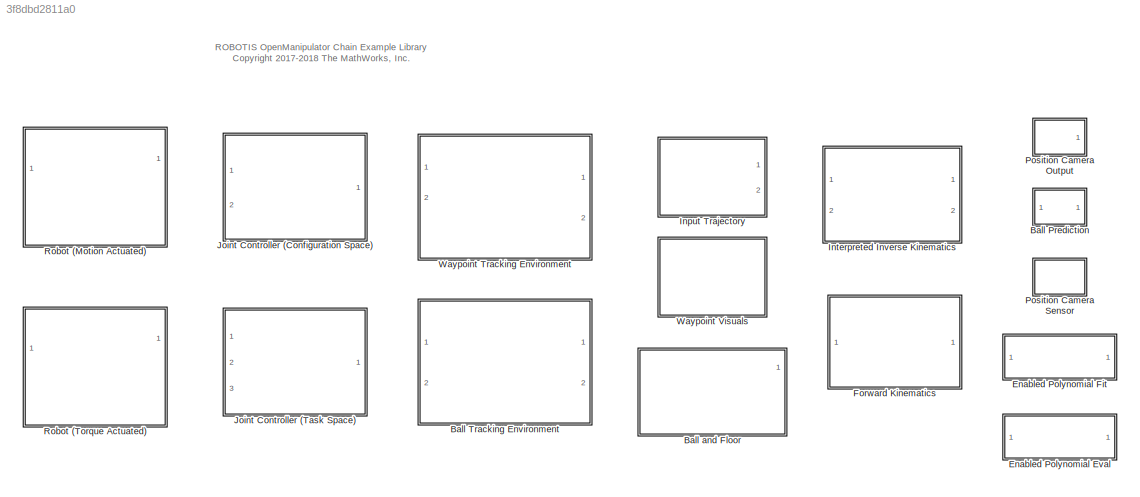
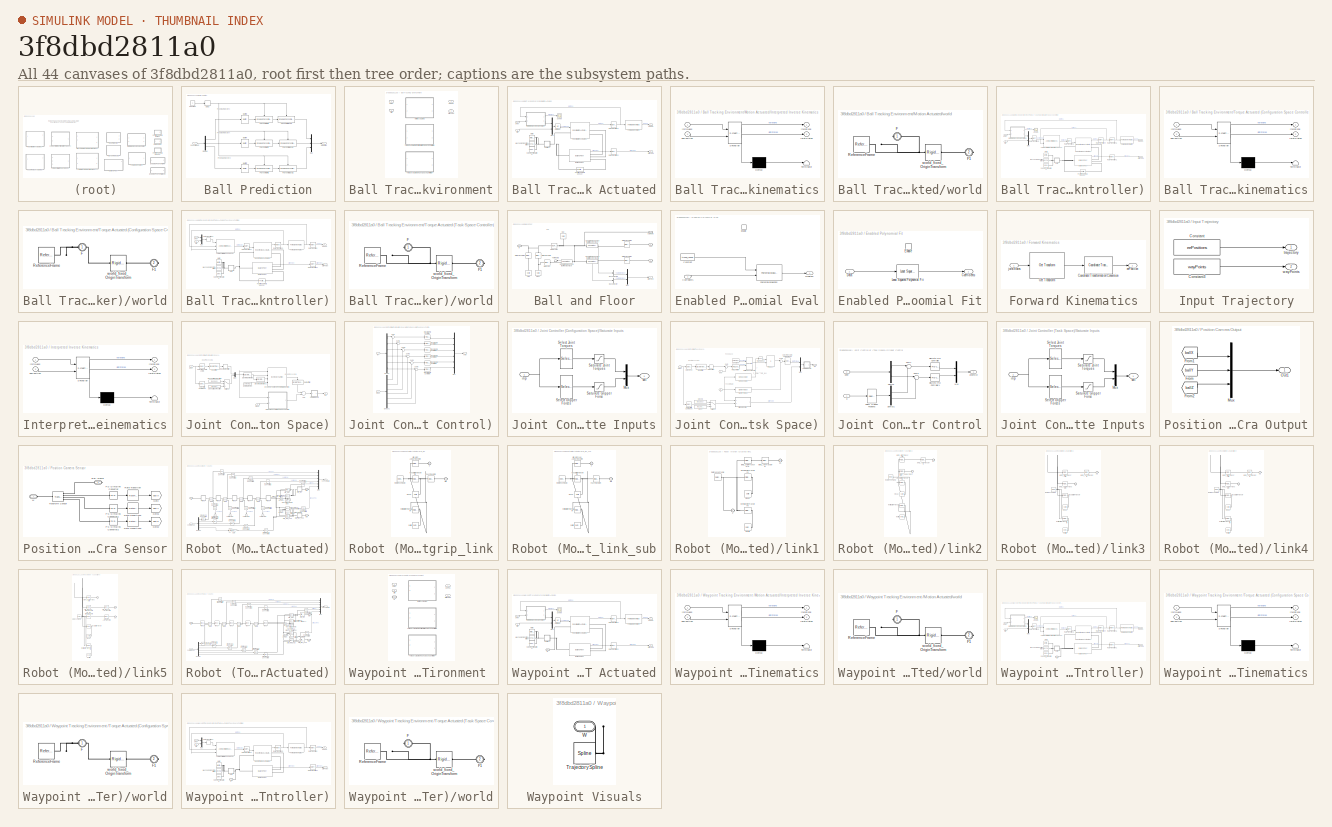
[diagram: thumbnail index - all 44 canvases of the model, root first then tree order]
MODEL slx_3f8dbd2811a0
KIND library
CONFIG AbsTol = auto
CONFIG EnableMultiTasking = off
CONFIG FixedStep = auto
CONFIG MaxStep = auto
CONFIG MinStep = auto
CONFIG RelTol = 1e-3
CONFIG SampleTimeConstraint = Unconstrained
CONFIG Solver = VariableStepAuto
CONFIG SolverName = VariableStepAuto
CONFIG StartTime = 0.0
CONFIG StopTime = 10.0
BLOCK [SubSystem] Ball Prediction
  Ports = [1, 1]
  RequestExecContextInheritance = off
BLOCK [Buffer] Ball Prediction/Buffer X
  N = round(estDelay/Ts)
  OutputFrames = off
  V = round(estDelay/Ts)-1
BLOCK [Buffer] Ball Prediction/Buffer Y
  N = round(estDelay/Ts)
  OutputFrames = off
  V = round(estDelay/Ts)-1
BLOCK [Buffer] Ball Prediction/Buffer Z
  N = round(estDelay/Ts)
  OutputFrames = off
  V = round(estDelay/Ts)-1
BLOCK [Constant] Ball Prediction/Constant
BLOCK [Delay] Ball Prediction/Delay
  DelayLength = round(estDelay/Ts)
  InputPortMap = u0
  Ports = [1, 1]
BLOCK [Demux] Ball Prediction/Demux
  DisplayOption = bar
  Outputs = 3
  Ports = [1, 3]
BLOCK [Mux] Ball Prediction/Mux
  DisplayOption = bar
  Inputs = 3
  Ports = [3, 1]
BLOCK [Reference] Ball Prediction/Polynomial Eval X  REF=$bdroot/Enabled Polynomial Eval
  Ports = [1, 1, 1]
  SourceBlock = $bdroot/Enabled Polynomial Eval
  SourceType = SubSystem
BLOCK [Reference] Ball Prediction/Polynomial Eval Y  REF=$bdroot/Enabled Polynomial Eval
  Ports = [1, 1, 1]
  SourceBlock = $bdroot/Enabled Polynomial Eval
  SourceType = SubSystem
BLOCK [Reference] Ball Prediction/Polynomial Eval Z  REF=$bdroot/Enabled Polynomial Eval
  Ports = [1, 1, 1]
  SourceBlock = $bdroot/Enabled Polynomial Eval
  SourceType = SubSystem
BLOCK [Reference] Ball Prediction/Polynomial Fit X  REF=$bdroot/Enabled Polynomial Fit
  Ports = [1, 1, 1]
  SourceBlock = $bdroot/Enabled Polynomial Fit
  SourceType = SubSystem
BLOCK [Reference] Ball Prediction/Polynomial Fit Y  REF=$bdroot/Enabled Polynomial Fit
  Ports = [1, 1, 1]
  SourceBlock = $bdroot/Enabled Polynomial Fit
  SourceType = SubSystem
BLOCK [Reference] Ball Prediction/Polynomial Fit Z  REF=$bdroot/Enabled Polynomial Fit
  Ports = [1, 1, 1]
  SourceBlock = $bdroot/Enabled Polynomial Fit
  SourceType = SubSystem
BLOCK [Outport] Ball Prediction/prediction
  IconDisplay = Port number
BLOCK [Inport] Ball Prediction/sensorInput
  IconDisplay = Port number
BLOCK [SubSystem] Ball Tracking Environment
  Ports = [2, 2]
  RequestExecContextInheritance = off
  Variant = on
  VariantControl = Variant1
BLOCK [Outport] Ball Tracking Environment/ eePos
  IconDisplay = Port number
BLOCK [Outport] Ball Tracking Environment/ gripForce
  IconDisplay = Port number
  Port = 2
BLOCK [SubSystem] Ball Tracking Environment/Motion Actuated
  Ports = [2, 2]
  RequestExecContextInheritance = off
  VariantControl = actuatorType==1
BLOCK [Reference] Ball Tracking Environment/Motion Actuated/Ball and Floor  REF=$bdroot/Ball and Floor
  Ports = [0, 1, 0, 0, 0, 1, 3]
  SourceBlock = $bdroot/Ball and Floor
  SourceType = Ball and Floor
BLOCK [Reference] Ball Tracking Environment/Motion Actuated/Forward Kinematics  REF=$bdroot/Forward Kinematics
  Ports = [1, 1]
  SourceBlock = $bdroot/Forward Kinematics
  SourceType = SubSystem
BLOCK [SubSystem] Ball Tracking Environment/Motion Actuated/Interpreted Inverse Kinematics
  ErrorFcn = Stateflow.Translate.translate
  PermitHierarchicalResolution = ExplicitOnly
  Ports = [2, 2]
  RequestExecContextInheritance = off
  SFBlockType = MATLAB Function
  TreatAsAtomicUnit = on
BLOCK [Demux] Ball Tracking Environment/Motion Actuated/Interpreted Inverse Kinematics/ Demux 
  Outputs = 1
  Ports = [1, 1]
BLOCK [S-Function] Ball Tracking Environment/Motion Actuated/Interpreted Inverse Kinematics/ SFunction 
  EnableBusSupport = off
  FunctionName = sf_sfun
  PortCounts = [2 3]
  Ports = [2, 3]
  SFcnIsStateOwnerBlock = off
  SFunctionDeploymentMode = off
  Tag = Stateflow S-Function OpenManipulatorLib 4
BLOCK [Terminator] Ball Tracking Environment/Motion Actuated/Interpreted Inverse Kinematics/ Terminator 
BLOCK [Inport] Ball Tracking Environment/Motion Actuated/Interpreted Inverse Kinematics/eePosition
  IconDisplay = Port number
  Port = 2
BLOCK [Inport] Ball Tracking Environment/Motion Actuated/Interpreted Inverse Kinematics/initGuess
  IconDisplay = Port number
BLOCK [Outport] Ball Tracking Environment/Motion Actuated/Interpreted Inverse Kinematics/iterations
  IconDisplay = Port number
BLOCK [Outport] Ball Tracking Environment/Motion Actuated/Interpreted Inverse Kinematics/jointStates
  IconDisplay = Port number
  Port = 2
BLOCK [Reference] Ball Tracking Environment/Motion Actuated/MechanismConfiguration  REF=sm_lib/Utilities/Mechanism
Configuration
  Ports = [0, 0, 0, 0, 0, 0, 1]
  SourceBlock = sm_lib/Utilities/Mechanism\nConfiguration
  SourceProductBaseCode = MS
  SourceProductName = Simscape Multibody
  SourceType = Mechanism\nConfiguration
BLOCK [Mux] Ball Tracking Environment/Motion Actuated/Mux
  DisplayOption = bar
  Inputs = 2
  Ports = [2, 1]
BLOCK [Reference] Ball Tracking Environment/Motion Actuated/Position Camera Sensor  REF=$bdroot/Position Camera Sensor
  Ports = [0, 0, 0, 0, 0, 1, 1]
  SourceBlock = $bdroot/Position Camera Sensor
BLOCK [RateTransition] Ball Tracking Environment/Motion Actuated/Rate Transition1
BLOCK [RateTransition] Ball Tracking Environment/Motion Actuated/Rate Transition2
BLOCK [Reference] Ball Tracking Environment/Motion Actuated/Robot (Motion Actuated)  REF=$bdroot/Robot 
(Motion Actuated)
  Ports = [1, 1, 0, 0, 0, 1, 2]
  SourceBlock = $bdroot/Robot \n(Motion Actuated)
BLOCK [Scope] Ball Tracking Environment/Motion Actuated/Scope
  Floating = off
  NumInputPorts = 1
  Ports = [1]
  ScopeSpecificationString = Simulink.scopes.TimeScopeBlockCfg('CurrentConfiguration', extmgr.ConfigurationSet(extmgr.Configuration('Core','General UI',true),extmgr.Configuration('Core','Source UI',true),extmgr.Configuration('Sources','WiredSimulink',true,'DataLoggingVariableName','ScopeData1'),extmgr.Configuration('Visuals','Time Domain',true),extmgr.Configuration('Tools','Plot Navigation',true),extmgr.Configuration('Tools',...<+40ch>
BLOCK [Reference] Ball Tracking Environment/Motion Actuated/Solver Configuration  REF=nesl_utility/Solver
Configuration
  Ports = [0, 0, 0, 0, 0, 0, 1]
  SourceBlock = nesl_utility/Solver\nConfiguration
  SourceProductBaseCode = SS
  SourceProductName = Simscape
  SourceType = Solver\nConfiguration
BLOCK [UnitDelay] Ball Tracking Environment/Motion Actuated/Unit Delay
  InputProcessing = Elements as channels (sample based)
  SampleTime = -1
BLOCK [Reference] Ball Tracking Environment/Motion Actuated/World  REF=sm_lib/Frames and
Transforms/World Frame
  Ports = [0, 0, 0, 0, 0, 0, 1]
  SourceBlock = sm_lib/Frames and\nTransforms/World Frame
  SourceProductBaseCode = MS
  SourceProductName = Simscape Multibody
  SourceType = World Frame
BLOCK [Outport] Ball Tracking Environment/Motion Actuated/eePos
  IconDisplay = Port number
BLOCK [Inport] Ball Tracking Environment/Motion Actuated/grip
  IconDisplay = Port number
  Port = 2
BLOCK [Outport] Ball Tracking Environment/Motion Actuated/gripForce
  IconDisplay = Port number
  Port = 2
BLOCK [Inport] Ball Tracking Environment/Motion Actuated/pRef 
  IconDisplay = Port number
BLOCK [SubSystem] Ball Tracking Environment/Motion Actuated/world
  Ports = [0, 0, 0, 0, 0, 1, 1]
  RequestExecContextInheritance = off
BLOCK [PMIOPort] Ball Tracking Environment/Motion Actuated/world/F
  Side = Left
BLOCK [PMIOPort] Ball Tracking Environment/Motion Actuated/world/F1
  Port = 2
  Side = Right
BLOCK [Reference] Ball Tracking Environment/Motion Actuated/world/ReferenceFrame  REF=sm_lib/Frames and
Transforms/Reference
Frame
  Ports = [0, 0, 0, 0, 0, 0, 1]
  SourceBlock = sm_lib/Frames and\nTransforms/Reference\nFrame
  SourceProductBaseCode = MS
  SourceProductName = Simscape Multibody
  SourceType = Reference\nFrame
BLOCK [Reference] Ball Tracking Environment/Motion Actuated/world/world_fixed_OriginTransform  REF=sm_lib/Frames and
Transforms/Rigid
Transform
  Ports = [0, 0, 0, 0, 0, 1, 1]
  SourceBlock = sm_lib/Frames and\nTransforms/Rigid\nTransform
  SourceProductBaseCode = MS
  SourceProductName = Simscape Multibody
  SourceType = Rigid\nTransform
BLOCK [SubSystem] Ball Tracking Environment/Torque Actuated (Configuration Space Controller)
  Ports = [2, 2]
  RequestExecContextInheritance = off
  VariantControl = actuatorType==2
BLOCK [Reference] Ball Tracking Environment/Torque Actuated (Configuration Space Controller)/Ball and Floor  REF=$bdroot/Ball and Floor
  Ports = [0, 1, 0, 0, 0, 1, 3]
  SourceBlock = $bdroot/Ball and Floor
  SourceType = Ball and Floor
BLOCK [Reference] Ball Tracking Environment/Torque Actuated (Configuration Space Controller)/Forward Kinematics  REF=$bdroot/Forward Kinematics
  Ports = [1, 1]
  SourceBlock = $bdroot/Forward Kinematics
  SourceType = SubSystem
BLOCK [SubSystem] Ball Tracking Environment/Torque Actuated (Configuration Space Controller)/Interpreted Inverse Kinematics
  ErrorFcn = Stateflow.Translate.translate
  PermitHierarchicalResolution = ExplicitOnly
  Ports = [2, 2]
  RequestExecContextInheritance = off
  SFBlockType = MATLAB Function
  TreatAsAtomicUnit = on
BLOCK [Demux] Ball Tracking Environment/Torque Actuated (Configuration Space Controller)/Interpreted Inverse Kinematics/ Demux 
  Outputs = 1
  Ports = [1, 1]
BLOCK [S-Function] Ball Tracking Environment/Torque Actuated (Configuration Space Controller)/Interpreted Inverse Kinematics/ SFunction 
  EnableBusSupport = off
  FunctionName = sf_sfun
  PortCounts = [2 3]
  Ports = [2, 3]
  SFcnIsStateOwnerBlock = off
  SFunctionDeploymentMode = off
  Tag = Stateflow S-Function OpenManipulatorLib 5
BLOCK [Terminator] Ball Tracking Environment/Torque Actuated (Configuration Space Controller)/Interpreted Inverse Kinematics/ Terminator 
BLOCK [Inport] Ball Tracking Environment/Torque Actuated (Configuration Space Controller)/Interpreted Inverse Kinematics/eePosition
  IconDisplay = Port number
  Port = 2
BLOCK [Inport] Ball Tracking Environment/Torque Actuated (Configuration Space Controller)/Interpreted Inverse Kinematics/initGuess
  IconDisplay = Port number
BLOCK [Outport] Ball Tracking Environment/Torque Actuated (Configuration Space Controller)/Interpreted Inverse Kinematics/iterations
  IconDisplay = Port number
BLOCK [Outport] Ball Tracking Environment/Torque Actuated (Configuration Space Controller)/Interpreted Inverse Kinematics/jointStates
  IconDisplay = Port number
  Port = 2
BLOCK [Reference] Ball Tracking Environment/Torque Actuated (Configuration Space Controller)/Joint Controller (Configuration Space)  REF=$bdroot/Joint Controller (Configuration Space)
  Ports = [2, 1]
  SourceBlock = $bdroot/Joint Controller (Configuration Space)
BLOCK [Reference] Ball Tracking Environment/Torque Actuated (Configuration Space Controller)/MechanismConfiguration  REF=sm_lib/Utilities/Mechanism
Configuration
  Ports = [0, 0, 0, 0, 0, 0, 1]
  SourceBlock = sm_lib/Utilities/Mechanism\nConfiguration
  SourceProductBaseCode = MS
  SourceProductName = Simscape Multibody
  SourceType = Mechanism\nConfiguration
BLOCK [Mux] Ball Tracking Environment/Torque Actuated (Configuration Space Controller)/Mux
  DisplayOption = bar
  Inputs = 2
  Ports = [2, 1]
BLOCK [Reference] Ball Tracking Environment/Torque Actuated (Configuration Space Controller)/Position Camera Sensor  REF=$bdroot/Position Camera Sensor
  Ports = [0, 0, 0, 0, 0, 1, 1]
  SourceBlock = $bdroot/Position Camera Sensor
BLOCK [RateTransition] Ball Tracking Environment/Torque Actuated (Configuration Space Controller)/Rate Transition1
BLOCK [RateTransition] Ball Tracking Environment/Torque Actuated (Configuration Space Controller)/Rate Transition2
  OutPortSampleTimeOpt = Inherit
BLOCK [RateTransition] Ball Tracking Environment/Torque Actuated (Configuration Space Controller)/Rate Transition4
BLOCK [RateTransition] Ball Tracking Environment/Torque Actuated (Configuration Space Controller)/Rate Transition5
  OutPortSampleTimeOpt = Inherit
BLOCK [RateTransition] Ball Tracking Environment/Torque Actuated (Configuration Space Controller)/Rate Transition6
BLOCK [Reference] Ball Tracking Environment/Torque Actuated (Configuration Space Controller)/Robot (Torque Actuated)  REF=$bdroot/Robot 
(Torque Actuated)
  Ports = [1, 1, 0, 0, 0, 1, 2]
  SourceBlock = $bdroot/Robot \n(Torque Actuated)
BLOCK [Scope] Ball Tracking Environment/Torque Actuated (Configuration Space Controller)/Scope
  Floating = off
  NumInputPorts = 1
  Ports = [1]
  ScopeSpecificationString = Simulink.scopes.TimeScopeBlockCfg('CurrentConfiguration', extmgr.ConfigurationSet(extmgr.Configuration('Core','General UI',true),extmgr.Configuration('Core','Source UI',true),extmgr.Configuration('Sources','WiredSimulink',true),extmgr.Configuration('Visuals','Time Domain',true,'SerializedDisplays',{struct('MinYLimReal','18.75','MaxYLimReal','31.25','YLabelReal','','MinYLimMag','18.75','MaxYLimMag'...<+1341ch>
BLOCK [Reference] Ball Tracking Environment/Torque Actuated (Configuration Space Controller)/Solver Configuration  REF=nesl_utility/Solver
Configuration
  Ports = [0, 0, 0, 0, 0, 0, 1]
  SourceBlock = nesl_utility/Solver\nConfiguration
  SourceProductBaseCode = SS
  SourceProductName = Simscape
  SourceType = Solver\nConfiguration
BLOCK [Reference] Ball Tracking Environment/Torque Actuated (Configuration Space Controller)/World  REF=sm_lib/Frames and
Transforms/World Frame
  Ports = [0, 0, 0, 0, 0, 0, 1]
  SourceBlock = sm_lib/Frames and\nTransforms/World Frame
  SourceProductBaseCode = MS
  SourceProductName = Simscape Multibody
  SourceType = World Frame
BLOCK [Outport] Ball Tracking Environment/Torque Actuated (Configuration Space Controller)/eePos
  IconDisplay = Port number
BLOCK [Inport] Ball Tracking Environment/Torque Actuated (Configuration Space Controller)/grip
  IconDisplay = Port number
  Port = 2
BLOCK [Outport] Ball Tracking Environment/Torque Actuated (Configuration Space Controller)/gripForce
  IconDisplay = Port number
  Port = 2
BLOCK [Inport] Ball Tracking Environment/Torque Actuated (Configuration Space Controller)/pRef 
  IconDisplay = Port number
BLOCK [SubSystem] Ball Tracking Environment/Torque Actuated (Configuration Space Controller)/world
  Ports = [0, 0, 0, 0, 0, 1, 1]
  RequestExecContextInheritance = off
BLOCK [PMIOPort] Ball Tracking Environment/Torque Actuated (Configuration Space Controller)/world/F
  Side = Left
BLOCK [PMIOPort] Ball Tracking Environment/Torque Actuated (Configuration Space Controller)/world/F1
  Port = 2
  Side = Right
BLOCK [Reference] Ball Tracking Environment/Torque Actuated (Configuration Space Controller)/world/ReferenceFrame  REF=sm_lib/Frames and
Transforms/Reference
Frame
  Ports = [0, 0, 0, 0, 0, 0, 1]
  SourceBlock = sm_lib/Frames and\nTransforms/Reference\nFrame
  SourceProductBaseCode = MS
  SourceProductName = Simscape Multibody
  SourceType = Reference\nFrame
BLOCK [Reference] Ball Tracking Environment/Torque Actuated (Configuration Space Controller)/world/world_fixed_OriginTransform  REF=sm_lib/Frames and
Transforms/Rigid
Transform
  Ports = [0, 0, 0, 0, 0, 1, 1]
  SourceBlock = sm_lib/Frames and\nTransforms/Rigid\nTransform
  SourceProductBaseCode = MS
  SourceProductName = Simscape Multibody
  SourceType = Rigid\nTransform
BLOCK [SubSystem] Ball Tracking Environment/Torque Actuated (Task Space Controller)
  Ports = [2, 2]
  RequestExecContextInheritance = off
  VariantControl = actuatorType==3
BLOCK [Reference] Ball Tracking Environment/Torque Actuated (Task Space Controller)/Ball and Floor  REF=$bdroot/Ball and Floor
  Ports = [0, 1, 0, 0, 0, 1, 3]
  SourceBlock = $bdroot/Ball and Floor
  SourceType = Ball and Floor
BLOCK [Reference] Ball Tracking Environment/Torque Actuated (Task Space Controller)/Forward Kinematics  REF=$bdroot/Forward Kinematics
  Ports = [1, 1]
  SourceBlock = $bdroot/Forward Kinematics
  SourceType = SubSystem
BLOCK [Reference] Ball Tracking Environment/Torque Actuated (Task Space Controller)/Joint Controller (Task Space)  REF=$bdroot/Joint Controller (Task Space)
  Ports = [3, 1]
  SourceBlock = $bdroot/Joint Controller (Task Space)
BLOCK [Reference] Ball Tracking Environment/Torque Actuated (Task Space Controller)/MechanismConfiguration  REF=sm_lib/Utilities/Mechanism
Configuration
  Ports = [0, 0, 0, 0, 0, 0, 1]
  SourceBlock = sm_lib/Utilities/Mechanism\nConfiguration
  SourceProductBaseCode = MS
  SourceProductName = Simscape Multibody
  SourceType = Mechanism\nConfiguration
BLOCK [Mux] Ball Tracking Environment/Torque Actuated (Task Space Controller)/Mux
  DisplayOption = bar
  Inputs = 2
  Ports = [2, 1]
BLOCK [Reference] Ball Tracking Environment/Torque Actuated (Task Space Controller)/Position Camera Sensor  REF=$bdroot/Position Camera Sensor
  Ports = [0, 0, 0, 0, 0, 1, 1]
  SourceBlock = $bdroot/Position Camera Sensor
BLOCK [RateTransition] Ball Tracking Environment/Torque Actuated (Task Space Controller)/Rate Transition
BLOCK [RateTransition] Ball Tracking Environment/Torque Actuated (Task Space Controller)/Rate Transition1
BLOCK [RateTransition] Ball Tracking Environment/Torque Actuated (Task Space Controller)/Rate Transition2
  OutPortSampleTimeOpt = Inherit
BLOCK [RateTransition] Ball Tracking Environment/Torque Actuated (Task Space Controller)/Rate Transition3
BLOCK [RateTransition] Ball Tracking Environment/Torque Actuated (Task Space Controller)/Rate Transition4
BLOCK [Reference] Ball Tracking Environment/Torque Actuated (Task Space Controller)/Robot (Torque Actuated)  REF=$bdroot/Robot 
(Torque Actuated)
  Ports = [1, 1, 0, 0, 0, 1, 2]
  SourceBlock = $bdroot/Robot \n(Torque Actuated)
BLOCK [Reference] Ball Tracking Environment/Torque Actuated (Task Space Controller)/Solver Configuration  REF=nesl_utility/Solver
Configuration
  Ports = [0, 0, 0, 0, 0, 0, 1]
  SourceBlock = nesl_utility/Solver\nConfiguration
  SourceProductBaseCode = SS
  SourceProductName = Simscape
  SourceType = Solver\nConfiguration
BLOCK [Reference] Ball Tracking Environment/Torque Actuated (Task Space Controller)/World  REF=sm_lib/Frames and
Transforms/World Frame
  Ports = [0, 0, 0, 0, 0, 0, 1]
  SourceBlock = sm_lib/Frames and\nTransforms/World Frame
  SourceProductBaseCode = MS
  SourceProductName = Simscape Multibody
  SourceType = World Frame
BLOCK [Outport] Ball Tracking Environment/Torque Actuated (Task Space Controller)/eePos
  IconDisplay = Port number
BLOCK [Inport] Ball Tracking Environment/Torque Actuated (Task Space Controller)/grip
  IconDisplay = Port number
  Port = 2
BLOCK [Outport] Ball Tracking Environment/Torque Actuated (Task Space Controller)/gripForce
  IconDisplay = Port number
  Port = 2
BLOCK [Inport] Ball Tracking Environment/Torque Actuated (Task Space Controller)/pRef 
  IconDisplay = Port number
BLOCK [SubSystem] Ball Tracking Environment/Torque Actuated (Task Space Controller)/world
  Ports = [0, 0, 0, 0, 0, 1, 1]
  RequestExecContextInheritance = off
BLOCK [PMIOPort] Ball Tracking Environment/Torque Actuated (Task Space Controller)/world/F
  Side = Left
BLOCK [PMIOPort] Ball Tracking Environment/Torque Actuated (Task Space Controller)/world/F1
  Port = 2
  Side = Right
BLOCK [Reference] Ball Tracking Environment/Torque Actuated (Task Space Controller)/world/ReferenceFrame  REF=sm_lib/Frames and
Transforms/Reference
Frame
  Ports = [0, 0, 0, 0, 0, 0, 1]
  SourceBlock = sm_lib/Frames and\nTransforms/Reference\nFrame
  SourceProductBaseCode = MS
  SourceProductName = Simscape Multibody
  SourceType = Reference\nFrame
BLOCK [Reference] Ball Tracking Environment/Torque Actuated (Task Space Controller)/world/world_fixed_OriginTransform  REF=sm_lib/Frames and
Transforms/Rigid
Transform
  Ports = [0, 0, 0, 0, 0, 1, 1]
  SourceBlock = sm_lib/Frames and\nTransforms/Rigid\nTransform
  SourceProductBaseCode = MS
  SourceProductName = Simscape Multibody
  SourceType = Rigid\nTransform
BLOCK [Inport] Ball Tracking Environment/grip
  IconDisplay = Port number
  Port = 2
BLOCK [Inport] Ball Tracking Environment/pRef 
  IconDisplay = Port number
BLOCK [SubSystem] Ball and Floor
  Ports = [0, 1, 0, 0, 0, 1, 3]
  RequestExecContextInheritance = off
BLOCK [Reference] Ball and Floor/6-DOF Joint  REF=sm_lib/Joints/6-DOF Joint
  Ports = [0, 0, 0, 0, 0, 1, 1]
  SourceBlock = sm_lib/Joints/6-DOF Joint
  SourceProductBaseCode = MS
  SourceProductName = Simscape Multibody
  SourceType = 6-DOF Joint
BLOCK [Reference] Ball and Floor/Ball  REF=sm_lib/Body Elements/Solid
  Ports = [0, 0, 0, 0, 0, 0, 1]
  SourceBlock = sm_lib/Body Elements/Solid
  SourceProductBaseCode = MS
  SourceProductName = Simscape Multibody
  SourceType = Solid
BLOCK [BusSelector] Ball and Floor/Bus Selector
  OutputAsBus = off
  OutputSignals = Normal Force
  Ports = [1, 1]
BLOCK [BusSelector] Ball and Floor/Bus Selector1
  OutputAsBus = off
  OutputSignals = Normal Force
  Ports = [1, 1]
BLOCK [Reference] Ball and Floor/Floor  REF=sm_lib/Body Elements/Solid
  Ports = [0, 0, 0, 0, 0, 0, 1]
  SourceBlock = sm_lib/Body Elements/Solid
  SourceProductBaseCode = MS
  SourceProductName = Simscape Multibody
  SourceType = Solid
BLOCK [Reference] Ball and Floor/Line  REF=sm_lib/Body Elements/Solid
  Ports = [0, 0, 0, 0, 0, 0, 1]
  SourceBlock = sm_lib/Body Elements/Solid
  SourceProductBaseCode = MS
  SourceProductName = Simscape Multibody
  SourceType = Solid
BLOCK [Mux] Ball and Floor/Mux
  DisplayOption = bar
  Inputs = 2
  Ports = [2, 1]
BLOCK [PMIOPort] Ball and Floor/Pba
  Side = Right
BLOCK [PMIOPort] Ball and Floor/Pbb
  Port = 2
  Side = Right
BLOCK [Reference] Ball and Floor/Rigid Transform  REF=sm_lib/Frames and
Transforms/Rigid
Transform
  Ports = [0, 0, 0, 0, 0, 1, 1]
  SourceBlock = sm_lib/Frames and\nTransforms/Rigid\nTransform
  SourceProductBaseCode = MS
  SourceProductName = Simscape Multibody
  SourceType = Rigid\nTransform
BLOCK [Reference] Ball and Floor/Rigid Transform1  REF=sm_lib/Frames and
Transforms/Rigid
Transform
  Ports = [0, 0, 0, 0, 0, 1, 1]
  SourceBlock = sm_lib/Frames and\nTransforms/Rigid\nTransform
  SourceProductBaseCode = MS
  SourceProductName = Simscape Multibody
  SourceType = Rigid\nTransform
BLOCK [Reference] Ball and Floor/Rigid Transform2  REF=sm_lib/Frames and
Transforms/Rigid
Transform
  Ports = [0, 0, 0, 0, 0, 1, 1]
  SourceBlock = sm_lib/Frames and\nTransforms/Rigid\nTransform
  SourceProductBaseCode = MS
  SourceProductName = Simscape Multibody
  SourceType = Rigid\nTransform
BLOCK [Reference] Ball and Floor/Rigid Transform3  REF=sm_lib/Frames and
Transforms/Rigid
Transform
  Ports = [0, 0, 0, 0, 0, 1, 1]
  SourceBlock = sm_lib/Frames and\nTransforms/Rigid\nTransform
  SourceProductBaseCode = MS
  SourceProductName = Simscape Multibody
  SourceType = Rigid\nTransform
BLOCK [Reference] Ball and Floor/Sphere to Plane Force (Ball-Floor Contact)  REF=Contact_Forces_Lib/3D/Sphere to Plane Force
  Ports = [0, 1, 0, 0, 0, 1, 1]
  SourceBlock = Contact_Forces_Lib/3D/Sphere to Plane Force
  SourceProductName = Simscape Multibody Contact Forces Library
  SourceType = Sphere to Plane Force
BLOCK [Reference] Ball and Floor/Sphere to Plane Force (Ball-Gripper Contact)  REF=Contact_Forces_Lib/3D/Sphere to Plane Force
  Ports = [0, 1, 0, 0, 0, 1, 1]
  SourceBlock = Contact_Forces_Lib/3D/Sphere to Plane Force
  SourceProductName = Simscape Multibody Contact Forces Library
  SourceType = Sphere to Plane Force
BLOCK [Reference] Ball and Floor/Sphere to Plane Force (Ball-Gripper Contact)1  REF=Contact_Forces_Lib/3D/Sphere to Plane Force
  Ports = [0, 1, 0, 0, 0, 1, 1]
  SourceBlock = Contact_Forces_Lib/3D/Sphere to Plane Force
  SourceProductName = Simscape Multibody Contact Forces Library
  SourceType = Sphere to Plane Force
BLOCK [Terminator] Ball and Floor/Terminator2
BLOCK [PMIOPort] Ball and Floor/W
  Port = 3
  Side = Left
BLOCK [Reference] Ball and Floor/Weld Joint  REF=sm_lib/Joints/Weld Joint
  Ports = [0, 0, 0, 0, 0, 1, 1]
  SourceBlock = sm_lib/Joints/Weld Joint
  SourceProductBaseCode = MS
  SourceProductName = Simscape Multibody
  SourceType = Weld Joint
BLOCK [PMIOPort] Ball and Floor/ballFrame
  Port = 4
  Side = Right
BLOCK [Outport] Ball and Floor/grip Force
  IconDisplay = Port number
BLOCK [SubSystem] Enabled Polynomial Eval
  Ports = [1, 1, 1]
  RequestExecContextInheritance = off
BLOCK [Inport] Enabled Polynomial Eval/Coefficients
  IconDisplay = Port number
BLOCK [Constant] Enabled Polynomial Eval/Constant
  Value = time_jump
BLOCK [EnablePort] Enabled Polynomial Eval/Enable
  Ports = []
BLOCK [Reference] Enabled Polynomial Eval/Polynomial Evaluation  REF=dsppolyfun/Polynomial
Evaluation
  Ports = [2, 1]
  SourceBlock = dsppolyfun/Polynomial\nEvaluation
  SourceProductBaseCode = DS
  SourceProductName = DSP System Toolbox
  SourceType = Polynomial Evaluation
BLOCK [Outport] Enabled Polynomial Eval/Prediction
  IconDisplay = Port number
BLOCK [SubSystem] Enabled Polynomial Fit
  Ports = [1, 1, 1]
  RequestExecContextInheritance = off
BLOCK [Outport] Enabled Polynomial Fit/Coefficients
  IconDisplay = Port number
BLOCK [Inport] Enabled Polynomial Fit/Data
  IconDisplay = Port number
BLOCK [EnablePort] Enabled Polynomial Fit/Enable
  Ports = []
BLOCK [Reference] Enabled Polynomial Fit/Least Squares Polynomial Fit  REF=dsppolyfun/Least Squares
Polynomial Fit
  Ports = [1, 1]
  SourceBlock = dsppolyfun/Least Squares\nPolynomial Fit
  SourceProductBaseCode = DS
  SourceProductName = DSP System Toolbox
  SourceType = Least Squares Polynomial Fit
BLOCK [SubSystem] Forward Kinematics
  Ports = [1, 1]
  RequestExecContextInheritance = off
BLOCK [Reference] Forward Kinematics/Coordinate Transformation Conversion  REF=robotcorelib/Coordinate Transformation Conversion
  AttributesFormatString = %<InputRepresentation>\nto %<OutputRepresentation>
  Ports = [1, 1]
  SourceBlock = robotcorelib/Coordinate Transformation Conversion
  SourceProductBaseCode = RO
  SourceProductName = Robotics System Toolbox
  SourceType = robotics.slcore.internal.block.CoordinateTransformationConversion
BLOCK [Reference] Forward Kinematics/Get Transform  REF=robotmaniplib/Get Transform
  Ports = [1, 1]
  SourceBlock = robotmaniplib/Get Transform
  SourceProductBaseCode = RO
  SourceProductName = Robotics System Toolbox
  SourceType = Get Transform
BLOCK [Outport] Forward Kinematics/eePosition
  IconDisplay = Port number
BLOCK [Inport] Forward Kinematics/jointStates
  IconDisplay = Port number
BLOCK [SubSystem] Input Trajectory
  Ports = [0, 2]
  RequestExecContextInheritance = off
BLOCK [Constant] Input Trajectory/Constant
  Value = eePositions
BLOCK [Constant] Input Trajectory/Constant3
  Value = wayPoints
BLOCK [Outport] Input Trajectory/trajectory
  IconDisplay = Port number
BLOCK [Outport] Input Trajectory/wayPoints
  IconDisplay = Port number
  Port = 2
BLOCK [SubSystem] Interpreted Inverse Kinematics
  ErrorFcn = Stateflow.Translate.translate
  PermitHierarchicalResolution = ExplicitOnly
  Ports = [2, 2]
  RequestExecContextInheritance = off
  SFBlockType = MATLAB Function
  TreatAsAtomicUnit = on
BLOCK [Demux] Interpreted Inverse Kinematics/ Demux 
  Outputs = 1
  Ports = [1, 1]
BLOCK [S-Function] Interpreted Inverse Kinematics/ SFunction 
  EnableBusSupport = off
  FunctionName = sf_sfun
  PortCounts = [2 3]
  Ports = [2, 3]
  SFcnIsStateOwnerBlock = off
  SFunctionDeploymentMode = off
  Tag = Stateflow S-Function OpenManipulatorLib 3
BLOCK [Terminator] Interpreted Inverse Kinematics/ Terminator 
BLOCK [Inport] Interpreted Inverse Kinematics/eePosition
  IconDisplay = Port number
  Port = 2
BLOCK [Inport] Interpreted Inverse Kinematics/initGuess
  IconDisplay = Port number
BLOCK [Outport] Interpreted Inverse Kinematics/iterations
  IconDisplay = Port number
BLOCK [Outport] Interpreted Inverse Kinematics/jointStates
  IconDisplay = Port number
  Port = 2
BLOCK [SubSystem] Joint Controller (Configuration Space)
  Ports = [2, 1]
  RequestExecContextInheritance = off
  VariantControl = ctrlType==1
BLOCK [Sum] Joint Controller (Configuration Space)/Add
  InputSameDT = off
  OutDataTypeStr = Inherit: Inherit via internal rule
  Ports = [2, 1]
  SaturateOnIntegerOverflow = off
BLOCK [Constant] Joint Controller (Configuration Space)/Closed Gripper Position
  Value = [0.02;0.02]
BLOCK [Reference] Joint Controller (Configuration Space)/Discrete Derivative  REF=simulink/Discrete/Discrete Derivative
  Ports = [1, 1]
  SourceBlock = simulink/Discrete/Discrete Derivative
  SourceProductBaseCode = SL
  SourceProductName = Simulink
  SourceType = Discrete Derivative
BLOCK [Reference] Joint Controller (Configuration Space)/Discrete Derivative1  REF=simulink/Discrete/Discrete Derivative
  Ports = [1, 1]
  SourceBlock = simulink/Discrete/Discrete Derivative
  SourceProductBaseCode = SL
  SourceProductName = Simulink
  SourceType = Discrete Derivative
BLOCK [Constant] Joint Controller (Configuration Space)/External Force
  Value = zeros(6,8)
BLOCK [DiscreteTransferFcn] Joint Controller (Configuration Space)/Input Filter
  Denominator = [1 -0.9753]
  InputPortMap = u0
  Numerator = 0.02469
  Ports = [1, 1]
BLOCK [RateLimiter] Joint Controller (Configuration Space)/Input Rate Limiter
  FallingSlewLimit = -pi
  RisingSlewLimit = pi
  SampleTimeMode = inherited
BLOCK [Reference] Joint Controller (Configuration Space)/Inverse Dynamics (Feedforward Control)  REF=robotmaniplib/Inverse Dynamics
  Ports = [4, 1]
  SourceBlock = robotmaniplib/Inverse Dynamics
  SourceProductBaseCode = RO
  SourceProductName = Robotics System Toolbox
  SourceType = Inverse Dynamics
BLOCK [Mux] Joint Controller (Configuration Space)/Mux
  DisplayOption = bar
  Inputs = 2
  Ports = [2, 1]
BLOCK [Constant] Joint Controller (Configuration Space)/Open Gripper Position
  Value = [-0.01 -0.01]
BLOCK [DiscreteTransferFcn] Joint Controller (Configuration Space)/Output Filter
  Denominator = [1 -0.9753]
  InputPortMap = u0
  Numerator = 0.02469
  Ports = [1, 1]
BLOCK [SubSystem] Joint Controller (Configuration Space)/PID Compensator (Feedback Control)
  Ports = [2, 1]
  RequestExecContextInheritance = off
BLOCK [Demux] Joint Controller (Configuration Space)/PID Compensator (Feedback Control)/Demux
  DisplayOption = bar
  Outputs = 6
  Ports = [1, 6]
BLOCK [Demux] Joint Controller (Configuration Space)/PID Compensator (Feedback Control)/Demux1
  DisplayOption = bar
  Outputs = 6
  Ports = [1, 6]
BLOCK [Reference] Joint Controller (Configuration Space)/PID Compensator (Feedback Control)/Discrete PID Controller  REF=simulink/Continuous/PID Controller
  Ports = [1, 1]
  SourceBlock = simulink/Continuous/PID Controller
  SourceProductBaseCode = SL
  SourceProductName = Simulink
  SourceType = PID 1dof
BLOCK [Reference] Joint Controller (Configuration Space)/PID Compensator (Feedback Control)/Discrete PID Controller1  REF=simulink/Continuous/PID Controller
  Ports = [1, 1]
  SourceBlock = simulink/Continuous/PID Controller
  SourceProductBaseCode = SL
  SourceProductName = Simulink
  SourceType = PID 1dof
BLOCK [Reference] Joint Controller (Configuration Space)/PID Compensator (Feedback Control)/Discrete PID Controller2  REF=simulink/Continuous/PID Controller
  Ports = [1, 1]
  SourceBlock = simulink/Continuous/PID Controller
  SourceProductBaseCode = SL
  SourceProductName = Simulink
  SourceType = PID 1dof
BLOCK [Reference] Joint Controller (Configuration Space)/PID Compensator (Feedback Control)/Discrete PID Controller3  REF=simulink/Continuous/PID Controller
  Ports = [1, 1]
  SourceBlock = simulink/Continuous/PID Controller
  SourceProductBaseCode = SL
  SourceProductName = Simulink
  SourceType = PID 1dof
BLOCK [Reference] Joint Controller (Configuration Space)/PID Compensator (Feedback Control)/Discrete PID Controller4  REF=simulink/Continuous/PID Controller
  Ports = [1, 1]
  SourceBlock = simulink/Continuous/PID Controller
  SourceProductBaseCode = SL
  SourceProductName = Simulink
  SourceType = PID 1dof
BLOCK [Reference] Joint Controller (Configuration Space)/PID Compensator (Feedback Control)/Discrete PID Controller5  REF=simulink/Continuous/PID Controller
  Ports = [1, 1]
  SourceBlock = simulink/Continuous/PID Controller
  SourceProductBaseCode = SL
  SourceProductName = Simulink
  SourceType = PID 1dof
BLOCK [Mux] Joint Controller (Configuration Space)/PID Compensator (Feedback Control)/Mux
  DisplayOption = bar
  Inputs = 6
  Ports = [6, 1]
BLOCK [Sum] Joint Controller (Configuration Space)/PID Compensator (Feedback Control)/Sum
  IconShape = round
  InputSameDT = off
  Inputs = |+-
  OutDataTypeStr = Inherit: Inherit via internal rule
  Ports = [2, 1]
  SaturateOnIntegerOverflow = off
BLOCK [Sum] Joint Controller (Configuration Space)/PID Compensator (Feedback Control)/Sum1
  IconShape = round
  InputSameDT = off
  Inputs = |+-
  OutDataTypeStr = Inherit: Inherit via internal rule
  Ports = [2, 1]
  SaturateOnIntegerOverflow = off
BLOCK [Sum] Joint Controller (Configuration Space)/PID Compensator (Feedback Control)/Sum2
  IconShape = round
  InputSameDT = off
  Inputs = |+-
  OutDataTypeStr = Inherit: Inherit via internal rule
  Ports = [2, 1]
  SaturateOnIntegerOverflow = off
BLOCK [Sum] Joint Controller (Configuration Space)/PID Compensator (Feedback Control)/Sum3
  IconShape = round
  InputSameDT = off
  Inputs = |+-
  OutDataTypeStr = Inherit: Inherit via internal rule
  Ports = [2, 1]
  SaturateOnIntegerOverflow = off
BLOCK [Sum] Joint Controller (Configuration Space)/PID Compensator (Feedback Control)/Sum4
  IconShape = round
  InputSameDT = off
  Inputs = |+-
  OutDataTypeStr = Inherit: Inherit via internal rule
  Ports = [2, 1]
  SaturateOnIntegerOverflow = off
BLOCK [Sum] Joint Controller (Configuration Space)/PID Compensator (Feedback Control)/Sum5
  IconShape = round
  InputSameDT = off
  Inputs = |+-
  OutDataTypeStr = Inherit: Inherit via internal rule
  Ports = [2, 1]
  SaturateOnIntegerOverflow = off
BLOCK [Outport] Joint Controller (Configuration Space)/PID Compensator (Feedback Control)/cmd
  IconDisplay = Port number
BLOCK [Inport] Joint Controller (Configuration Space)/PID Compensator (Feedback Control)/meas
  IconDisplay = Port number
  Port = 2
BLOCK [Inport] Joint Controller (Configuration Space)/PID Compensator (Feedback Control)/ref
  IconDisplay = Port number
BLOCK [SubSystem] Joint Controller (Configuration Space)/Saturate Inputs
  Ports = [1, 1]
  RequestExecContextInheritance = off
BLOCK [Mux] Joint Controller (Configuration Space)/Saturate Inputs/Mux
  DisplayOption = bar
  Inputs = 2
  Ports = [2, 1]
BLOCK [Saturate] Joint Controller (Configuration Space)/Saturate Inputs/Saturate Gripper Force
  InputPortMap = u0
  LowerLimit = gripLowerLimit
  Ports = [1, 1]
  UpperLimit = gripUpperLimit
BLOCK [Saturate] Joint Controller (Configuration Space)/Saturate Inputs/Saturate Joint Torques
  InputPortMap = u0
  LowerLimit = ctrlLowerLimit
  Ports = [1, 1]
  UpperLimit = ctrlUpperLimit
BLOCK [Selector] Joint Controller (Configuration Space)/Saturate Inputs/Select Gripper Forces
  IndexOptions = Index vector (dialog)
  Indices = 5:6
  InputPortWidth = 6
  OutputSizes = 1
  Ports = [1, 1]
BLOCK [Selector] Joint Controller (Configuration Space)/Saturate Inputs/Select Joint Torques
  IndexOptions = Index vector (dialog)
  Indices = 1:4
  InputPortWidth = 6
  OutputSizes = 1
  Ports = [1, 1]
BLOCK [Inport] Joint Controller (Configuration Space)/Saturate Inputs/inp
  IconDisplay = Port number
BLOCK [Outport] Joint Controller (Configuration Space)/Saturate Inputs/sat
  IconDisplay = Port number
BLOCK [Selector] Joint Controller (Configuration Space)/Select Grip Command
  IndexOptions = Index vector (dialog)
  Indices = 5
  InputPortWidth = 5
  OutputSizes = 1
  Ports = [1, 1]
BLOCK [Selector] Joint Controller (Configuration Space)/Select Revolute Joints
  IndexOptions = Index vector (dialog)
  Indices = 1:4
  InputPortWidth = 5
  OutputSizes = 1
  Ports = [1, 1]
BLOCK [Switch] Joint Controller (Configuration Space)/Switch1
  Criteria = u2 > Threshold
  InputSameDT = off
  SaturateOnIntegerOverflow = off
BLOCK [Outport] Joint Controller (Configuration Space)/inp
  IconDisplay = Port number
  SampleTime = TsCtrl
BLOCK [Inport] Joint Controller (Configuration Space)/meas
  IconDisplay = Port number
  Port = 2
  SampleTime = TsCtrl
BLOCK [Inport] Joint Controller (Configuration Space)/qRef
  IconDisplay = Port number
  SampleTime = TsCtrl
BLOCK [SubSystem] Joint Controller (Task Space)
  Ports = [3, 1]
  RequestExecContextInheritance = off
  VariantControl = ctrlType==1
BLOCK [Constant] Joint Controller (Task Space)/Closed
  Value = [0.02;0.02]
BLOCK [Constant] Joint Controller (Task Space)/Constant
  Value = zeros(3,1)
BLOCK [Reference] Joint Controller (Task Space)/Get Jacobian  REF=robotmaniplib/Get Jacobian
  Ports = [1, 1]
  SourceBlock = robotmaniplib/Get Jacobian
  SourceProductName = Robotics System Toolbox
  SourceType = Get Jacobian
BLOCK [Reference] Joint Controller (Task Space)/Gravity Torque  REF=robotmaniplib/Gravity Torque
  Ports = [1, 1]
  SourceBlock = robotmaniplib/Gravity Torque
  SourceProductBaseCode = RO
  SourceProductName = Robotics System Toolbox
  SourceType = Gravity Torque
BLOCK [SubSystem] Joint Controller (Task Space)/Gripper Control
  Ports = [2, 1]
  RequestExecContextInheritance = off
BLOCK [Demux] Joint Controller (Task Space)/Gripper Control/Demux
  DisplayOption = bar
  Outputs = 2
  Ports = [1, 2]
BLOCK [Demux] Joint Controller (Task Space)/Gripper Control/Demux1
  DisplayOption = bar
  Outputs = 2
  Ports = [1, 2]
BLOCK [Reference] Joint Controller (Task Space)/Gripper Control/Discrete PID Controller  REF=simulink/Continuous/PID Controller
  Ports = [1, 1]
  SourceBlock = simulink/Continuous/PID Controller
  SourceProductBaseCode = SL
  SourceProductName = Simulink
  SourceType = PID 1dof
BLOCK [Reference] Joint Controller (Task Space)/Gripper Control/Discrete PID Controller1  REF=simulink/Continuous/PID Controller
  Ports = [1, 1]
  SourceBlock = simulink/Continuous/PID Controller
  SourceProductBaseCode = SL
  SourceProductName = Simulink
  SourceType = PID 1dof
BLOCK [Mux] Joint Controller (Task Space)/Gripper Control/Mux
  DisplayOption = bar
  Inputs = 2
  Ports = [2, 1]
BLOCK [Selector] Joint Controller (Task Space)/Gripper Control/Select Gripper Positions
  IndexOptions = Index vector (dialog)
  Indices = 5:6
  InputPortWidth = 6
  OutputSizes = 1
  Ports = [1, 1]
BLOCK [Sum] Joint Controller (Task Space)/Gripper Control/Sum4
  IconShape = round
  InputSameDT = off
  Inputs = |+-
  OutDataTypeStr = Inherit: Inherit via internal rule
  Ports = [2, 1]
  SaturateOnIntegerOverflow = off
BLOCK [Sum] Joint Controller (Task Space)/Gripper Control/Sum5
  IconShape = round
  InputSameDT = off
  Inputs = |+-
  OutDataTypeStr = Inherit: Inherit via internal rule
  Ports = [2, 1]
  SaturateOnIntegerOverflow = off
BLOCK [Outport] Joint Controller (Task Space)/Gripper Control/gripForce
  IconDisplay = Port number
BLOCK [Inport] Joint Controller (Task Space)/Gripper Control/q
  IconDisplay = Port number
BLOCK [Inport] Joint Controller (Task Space)/Gripper Control/qRef
  IconDisplay = Port number
  Port = 2
BLOCK [DiscreteTransferFcn] Joint Controller (Task Space)/Input Filter
  Denominator = [1 -0.9753]
  InitialStates = initPos
  InputPortMap = u0
  Numerator = 0.02469
  Ports = [1, 1]
BLOCK [Concatenate] Joint Controller (Task Space)/Matrix Concatenate
  Mode = Multidimensional array
  Ports = [2, 1]
BLOCK [Mux] Joint Controller (Task Space)/Mux
  DisplayOption = bar
  Inputs = 2
  Ports = [2, 1]
BLOCK [Constant] Joint Controller (Task Space)/Open
  Value = [-0.01 -0.01]
BLOCK [Reference] Joint Controller (Task Space)/PID Controller  REF=simulink/Continuous/PID Controller
  Ports = [1, 1]
  SourceBlock = simulink/Continuous/PID Controller
  SourceProductBaseCode = SL
  SourceProductName = Simulink
  SourceType = PID 1dof
BLOCK [Product] Joint Controller (Task Space)/Product
  InputSameDT = off
  Multiplication = Matrix(*)
  OutDataTypeStr = Inherit: Inherit via internal rule
  Ports = [2, 1]
  RndMeth = Floor
  SaturateOnIntegerOverflow = off
BLOCK [RateLimiter] Joint Controller (Task Space)/Rate Limiter
  FallingSlewLimit = -0.25
  InitialCondition = initPos
  RisingSlewLimit = 0.25
  SampleTimeMode = inherited
BLOCK [SubSystem] Joint Controller (Task Space)/Saturate Inputs
  Ports = [1, 1]
  RequestExecContextInheritance = off
BLOCK [Mux] Joint Controller (Task Space)/Saturate Inputs/Mux
  DisplayOption = bar
  Inputs = 2
  Ports = [2, 1]
BLOCK [Saturate] Joint Controller (Task Space)/Saturate Inputs/Saturate Gripper Force
  InputPortMap = u0
  LowerLimit = gripLowerLimit
  Ports = [1, 1]
  UpperLimit = gripUpperLimit
BLOCK [Saturate] Joint Controller (Task Space)/Saturate Inputs/Saturate Joint Torques
  InputPortMap = u0
  LowerLimit = ctrlLowerLimit
  Ports = [1, 1]
  UpperLimit = ctrlUpperLimit
BLOCK [Selector] Joint Controller (Task Space)/Saturate Inputs/Select Gripper Forces
  IndexOptions = Index vector (dialog)
  Indices = 5:6
  InputPortWidth = 6
  OutputSizes = 1
  Ports = [1, 1]
BLOCK [Selector] Joint Controller (Task Space)/Saturate Inputs/Select Joint Torques
  IndexOptions = Index vector (dialog)
  Indices = 1:4
  InputPortWidth = 6
  OutputSizes = 1
  Ports = [1, 1]
BLOCK [Inport] Joint Controller (Task Space)/Saturate Inputs/inp
  IconDisplay = Port number
BLOCK [Outport] Joint Controller (Task Space)/Saturate Inputs/sat
  IconDisplay = Port number
BLOCK [Selector] Joint Controller (Task Space)/Select Grip Command
  IndexOptions = Index vector (dialog)
  Indices = 4
  InputPortWidth = 4
  OutputSizes = 1
  Ports = [1, 1]
BLOCK [Selector] Joint Controller (Task Space)/Select Revolute Joint Torques
  IndexOptions = Index vector (dialog)
  Indices = 1:4
  InputPortWidth = 6
  OutputSizes = 1
  Ports = [1, 1]
BLOCK [Selector] Joint Controller (Task Space)/Select XYZ
  IndexOptions = Index vector (dialog)
  Indices = 1:3
  InputPortWidth = 4
  OutputSizes = 1
  Ports = [1, 1]
BLOCK [Sum] Joint Controller (Task Space)/Sum
  IconShape = round
  InputSameDT = off
  Inputs = |+-
  OutDataTypeStr = Inherit: Inherit via internal rule
  Ports = [2, 1]
  SaturateOnIntegerOverflow = off
BLOCK [Sum] Joint Controller (Task Space)/Sum1
  IconShape = round
  InputSameDT = off
  Inputs = |++
  OutDataTypeStr = Inherit: Inherit via internal rule
  Ports = [2, 1]
  SaturateOnIntegerOverflow = off
BLOCK [Switch] Joint Controller (Task Space)/Switch1
  Criteria = u2 > Threshold
  InputSameDT = off
  SaturateOnIntegerOverflow = off
BLOCK [Math] Joint Controller (Task Space)/Transpose
  Operator = transpose
  Ports = [1, 1]
BLOCK [Outport] Joint Controller (Task Space)/inp
  IconDisplay = Port number
  SampleTime = TsCtrl
BLOCK [Inport] Joint Controller (Task Space)/pRef
  IconDisplay = Port number
  SampleTime = TsCtrl
BLOCK [Inport] Joint Controller (Task Space)/pos
  IconDisplay = Port number
  Port = 2
  SampleTime = TsCtrl
BLOCK [Inport] Joint Controller (Task Space)/q
  IconDisplay = Port number
  Port = 3
  SampleTime = TsCtrl
BLOCK [SubSystem] Position Camera Output
  Ports = [0, 1]
  RequestExecContextInheritance = off
BLOCK [From] Position Camera Output/From
  GotoTag = ballY
  TagVisibility = global
BLOCK [From] Position Camera Output/From1
  GotoTag = ballX
  TagVisibility = global
BLOCK [From] Position Camera Output/From2
  GotoTag = ballZ
  TagVisibility = global
BLOCK [Mux] Position Camera Output/Mux
  DisplayOption = bar
  Inputs = 3
  Ports = [3, 1]
BLOCK [Outport] Position Camera Output/Out1
  IconDisplay = Port number
BLOCK [SubSystem] Position Camera Sensor
  Ports = [0, 0, 0, 0, 0, 1, 1]
  RequestExecContextInheritance = off
BLOCK [PMIOPort] Position Camera Sensor/Ball Frame
  Port = 2
  Side = Right
BLOCK [Goto] Position Camera Sensor/Goto
  GotoTag = ballX
  TagVisibility = global
BLOCK [Goto] Position Camera Sensor/Goto1
  GotoTag = ballY
  TagVisibility = global
BLOCK [Goto] Position Camera Sensor/Goto2
  GotoTag = ballZ
  TagVisibility = global
BLOCK [Reference] Position Camera Sensor/PS-Simulink Converter  REF=nesl_utility/PS-Simulink
Converter
  Ports = [0, 1, 0, 0, 0, 1]
  SourceBlock = nesl_utility/PS-Simulink\nConverter
  SourceProductBaseCode = SS
  SourceProductName = Simscape
  SourceType = PS-Simulink\nConverter
BLOCK [Reference] Position Camera Sensor/PS-Simulink Converter1  REF=nesl_utility/PS-Simulink
Converter
  Ports = [0, 1, 0, 0, 0, 1]
  SourceBlock = nesl_utility/PS-Simulink\nConverter
  SourceProductBaseCode = SS
  SourceProductName = Simscape
  SourceType = PS-Simulink\nConverter
BLOCK [Reference] Position Camera Sensor/PS-Simulink Converter2  REF=nesl_utility/PS-Simulink
Converter
  Ports = [0, 1, 0, 0, 0, 1]
  SourceBlock = nesl_utility/PS-Simulink\nConverter
  SourceProductBaseCode = SS
  SourceProductName = Simscape
  SourceType = PS-Simulink\nConverter
BLOCK [RateTransition] Position Camera Sensor/Rate Transition
BLOCK [RateTransition] Position Camera Sensor/Rate Transition1
BLOCK [RateTransition] Position Camera Sensor/Rate Transition2
BLOCK [Reference] Position Camera Sensor/Transform Sensor  REF=sm_lib/Frames and
Transforms/Transform
Sensor
  Ports = [0, 0, 0, 0, 0, 1, 4]
  SourceBlock = sm_lib/Frames and\nTransforms/Transform\nSensor
  SourceProductBaseCode = MS
  SourceProductName = Simscape Multibody
  SourceType = Transform\nSensor
BLOCK [PMIOPort] Position Camera Sensor/W
  Side = Left
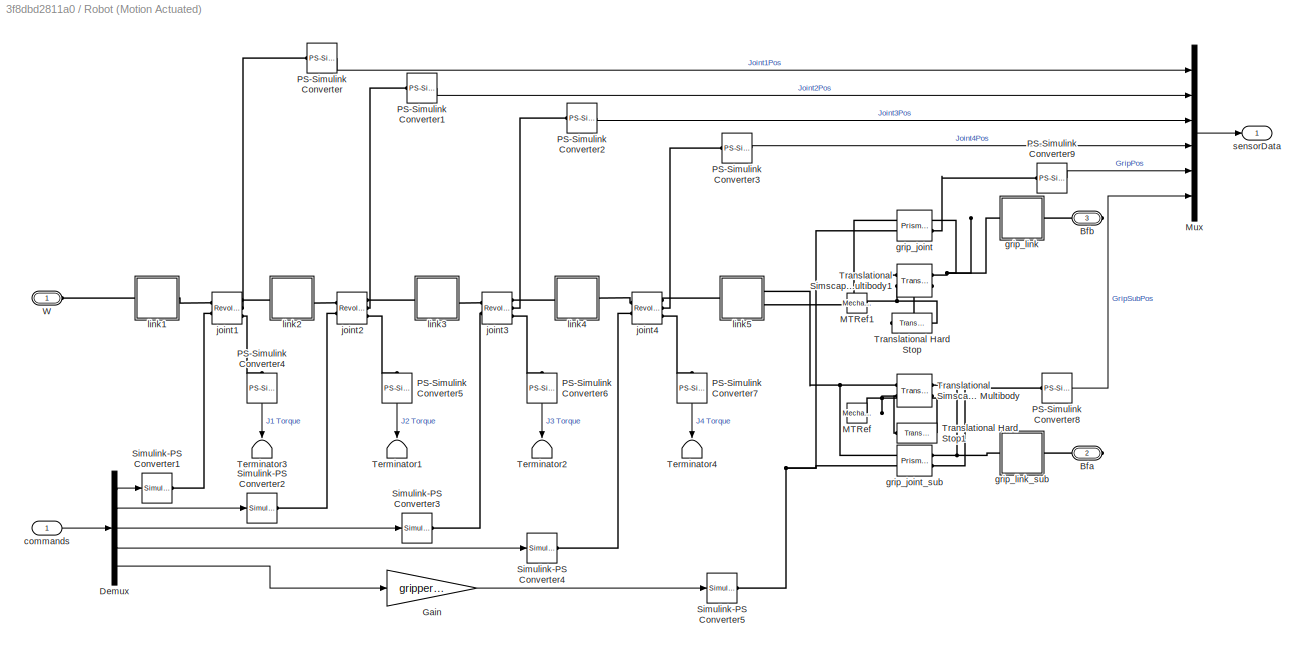
BLOCK [SubSystem] Robot (Motion Actuated)
  Ports = [1, 1, 0, 0, 0, 1, 2]
  RequestExecContextInheritance = off
BLOCK [PMIOPort] Robot (Motion Actuated)/Bfa
  Port = 2
  Side = Right
BLOCK [PMIOPort] Robot (Motion Actuated)/Bfb
  Port = 3
  Side = Right
BLOCK [Demux] Robot (Motion Actuated)/Demux
  DisplayOption = bar
  Outputs = 5
  Ports = [1, 5]
BLOCK [Gain] Robot (Motion Actuated)/Gain
  Gain = gripper_force
  OutDataTypeStr = Inherit: Inherit via internal rule
  ParamDataTypeStr = Inherit: Inherit via internal rule
  SaturateOnIntegerOverflow = off
BLOCK [Reference] Robot (Motion Actuated)/MTRef  REF=fl_lib/Mechanical/Translational
Elements/Mechanical
Translational
Reference
  Ports = [0, 0, 0, 0, 0, 1]
  SourceBlock = fl_lib/Mechanical/Translational\nElements/Mechanical\nTranslational\nReference
  SourceProductBaseCode = SS
  SourceProductName = Simscape
  SourceType = Mechanical\nTranslational\nReference
BLOCK [Reference] Robot (Motion Actuated)/MTRef1  REF=fl_lib/Mechanical/Translational
Elements/Mechanical
Translational
Reference
  Ports = [0, 0, 0, 0, 0, 1]
  SourceBlock = fl_lib/Mechanical/Translational\nElements/Mechanical\nTranslational\nReference
  SourceProductBaseCode = SS
  SourceProductName = Simscape
  SourceType = Mechanical\nTranslational\nReference
BLOCK [Mux] Robot (Motion Actuated)/Mux
  DisplayOption = bar
  Inputs = 6
  Ports = [6, 1]
BLOCK [Reference] Robot (Motion Actuated)/PS-Simulink Converter  REF=nesl_utility/PS-Simulink
Converter
  Ports = [0, 1, 0, 0, 0, 1]
  SourceBlock = nesl_utility/PS-Simulink\nConverter
  SourceProductBaseCode = SS
  SourceProductName = Simscape
  SourceType = PS-Simulink\nConverter
BLOCK [Reference] Robot (Motion Actuated)/PS-Simulink Converter1  REF=nesl_utility/PS-Simulink
Converter
  Ports = [0, 1, 0, 0, 0, 1]
  SourceBlock = nesl_utility/PS-Simulink\nConverter
  SourceProductBaseCode = SS
  SourceProductName = Simscape
  SourceType = PS-Simulink\nConverter
BLOCK [Reference] Robot (Motion Actuated)/PS-Simulink Converter2  REF=nesl_utility/PS-Simulink
Converter
  Ports = [0, 1, 0, 0, 0, 1]
  SourceBlock = nesl_utility/PS-Simulink\nConverter
  SourceProductBaseCode = SS
  SourceProductName = Simscape
  SourceType = PS-Simulink\nConverter
BLOCK [Reference] Robot (Motion Actuated)/PS-Simulink Converter3  REF=nesl_utility/PS-Simulink
Converter
  Ports = [0, 1, 0, 0, 0, 1]
  SourceBlock = nesl_utility/PS-Simulink\nConverter
  SourceProductBaseCode = SS
  SourceProductName = Simscape
  SourceType = PS-Simulink\nConverter
BLOCK [Reference] Robot (Motion Actuated)/PS-Simulink Converter4  REF=nesl_utility/PS-Simulink
Converter
  Ports = [0, 1, 0, 0, 0, 1]
  SourceBlock = nesl_utility/PS-Simulink\nConverter
  SourceProductBaseCode = SS
  SourceProductName = Simscape
  SourceType = PS-Simulink\nConverter
BLOCK [Reference] Robot (Motion Actuated)/PS-Simulink Converter5  REF=nesl_utility/PS-Simulink
Converter
  Ports = [0, 1, 0, 0, 0, 1]
  SourceBlock = nesl_utility/PS-Simulink\nConverter
  SourceProductBaseCode = SS
  SourceProductName = Simscape
  SourceType = PS-Simulink\nConverter
BLOCK [Reference] Robot (Motion Actuated)/PS-Simulink Converter6  REF=nesl_utility/PS-Simulink
Converter
  Ports = [0, 1, 0, 0, 0, 1]
  SourceBlock = nesl_utility/PS-Simulink\nConverter
  SourceProductBaseCode = SS
  SourceProductName = Simscape
  SourceType = PS-Simulink\nConverter
BLOCK [Reference] Robot (Motion Actuated)/PS-Simulink Converter7  REF=nesl_utility/PS-Simulink
Converter
  Ports = [0, 1, 0, 0, 0, 1]
  SourceBlock = nesl_utility/PS-Simulink\nConverter
  SourceProductBaseCode = SS
  SourceProductName = Simscape
  SourceType = PS-Simulink\nConverter
BLOCK [Reference] Robot (Motion Actuated)/PS-Simulink Converter8  REF=nesl_utility/PS-Simulink
Converter
  Ports = [0, 1, 0, 0, 0, 1]
  SourceBlock = nesl_utility/PS-Simulink\nConverter
  SourceProductBaseCode = SS
  SourceProductName = Simscape
  SourceType = PS-Simulink\nConverter
BLOCK [Reference] Robot (Motion Actuated)/PS-Simulink Converter9  REF=nesl_utility/PS-Simulink
Converter
  Ports = [0, 1, 0, 0, 0, 1]
  SourceBlock = nesl_utility/PS-Simulink\nConverter
  SourceProductBaseCode = SS
  SourceProductName = Simscape
  SourceType = PS-Simulink\nConverter
BLOCK [Reference] Robot (Motion Actuated)/Simulink-PS Converter1  REF=nesl_utility/Simulink-PS
Converter
  Ports = [1, 0, 0, 0, 0, 0, 1]
  SourceBlock = nesl_utility/Simulink-PS\nConverter
  SourceProductBaseCode = SS
  SourceProductName = Simscape
  SourceType = Simulink-PS\nConverter
BLOCK [Reference] Robot (Motion Actuated)/Simulink-PS Converter2  REF=nesl_utility/Simulink-PS
Converter
  Ports = [1, 0, 0, 0, 0, 0, 1]
  SourceBlock = nesl_utility/Simulink-PS\nConverter
  SourceProductBaseCode = SS
  SourceProductName = Simscape
  SourceType = Simulink-PS\nConverter
BLOCK [Reference] Robot (Motion Actuated)/Simulink-PS Converter3  REF=nesl_utility/Simulink-PS
Converter
  Ports = [1, 0, 0, 0, 0, 0, 1]
  SourceBlock = nesl_utility/Simulink-PS\nConverter
  SourceProductBaseCode = SS
  SourceProductName = Simscape
  SourceType = Simulink-PS\nConverter
BLOCK [Reference] Robot (Motion Actuated)/Simulink-PS Converter4  REF=nesl_utility/Simulink-PS
Converter
  Ports = [1, 0, 0, 0, 0, 0, 1]
  SourceBlock = nesl_utility/Simulink-PS\nConverter
  SourceProductBaseCode = SS
  SourceProductName = Simscape
  SourceType = Simulink-PS\nConverter
BLOCK [Reference] Robot (Motion Actuated)/Simulink-PS Converter5  REF=nesl_utility/Simulink-PS
Converter
  Ports = [1, 0, 0, 0, 0, 0, 1]
  SourceBlock = nesl_utility/Simulink-PS\nConverter
  SourceProductBaseCode = SS
  SourceProductName = Simscape
  SourceType = Simulink-PS\nConverter
BLOCK [Terminator] Robot (Motion Actuated)/Terminator1
BLOCK [Terminator] Robot (Motion Actuated)/Terminator2
BLOCK [Terminator] Robot (Motion Actuated)/Terminator3
BLOCK [Terminator] Robot (Motion Actuated)/Terminator4
BLOCK [Reference] Robot (Motion Actuated)/Translational Hard Stop  REF=fl_lib/Mechanical/Translational
Elements/Translational Hard
Stop
  Ports = [0, 0, 0, 0, 0, 1, 1]
  SourceBlock = fl_lib/Mechanical/Translational\nElements/Translational Hard\nStop
  SourceProductBaseCode = SS
  SourceProductName = Simscape
  SourceType = Translational Hard\nStop
BLOCK [Reference] Robot (Motion Actuated)/Translational Hard Stop1  REF=fl_lib/Mechanical/Translational
Elements/Translational Hard
Stop
  Ports = [0, 0, 0, 0, 0, 1, 1]
  SourceBlock = fl_lib/Mechanical/Translational\nElements/Translational Hard\nStop
  SourceProductBaseCode = SS
  SourceProductName = Simscape
  SourceType = Translational Hard\nStop
BLOCK [Reference] Robot (Motion Actuated)/Translational Simscape Multibody  REF=Multibody_Multiphysics_Lib/Interfaces/Translational
Simscape Multibody
  Ports = [0, 0, 0, 0, 0, 2, 2]
  SourceBlock = Multibody_Multiphysics_Lib/Interfaces/Translational\nSimscape Multibody
  SourceProductName = Simscape Multibody Multiphysics Library
  SourceType = SubSystem
BLOCK [Reference] Robot (Motion Actuated)/Translational Simscape Multibody1  REF=Multibody_Multiphysics_Lib/Interfaces/Translational
Simscape Multibody
  Ports = [0, 0, 0, 0, 0, 2, 2]
  SourceBlock = Multibody_Multiphysics_Lib/Interfaces/Translational\nSimscape Multibody
  SourceProductName = Simscape Multibody Multiphysics Library
  SourceType = SubSystem
BLOCK [PMIOPort] Robot (Motion Actuated)/W
  Side = Left
BLOCK [Inport] Robot (Motion Actuated)/commands
  IconDisplay = Port number
BLOCK [Reference] Robot (Motion Actuated)/grip_joint  REF=sm_lib/Joints/Prismatic
Joint
  Ports = [0, 0, 0, 0, 0, 2, 2]
  SourceBlock = sm_lib/Joints/Prismatic\nJoint
  SourceProductBaseCode = MS
  SourceProductName = Simscape Multibody
  SourceType = Prismatic\nJoint
BLOCK [Reference] Robot (Motion Actuated)/grip_joint_sub  REF=sm_lib/Joints/Prismatic
Joint
  Ports = [0, 0, 0, 0, 0, 2, 2]
  SourceBlock = sm_lib/Joints/Prismatic\nJoint
  SourceProductBaseCode = MS
  SourceProductName = Simscape Multibody
  SourceType = Prismatic\nJoint
BLOCK [SubSystem] Robot (Motion Actuated)/grip_link
  Ports = [0, 0, 0, 0, 0, 1, 1]
  RequestExecContextInheritance = off
BLOCK [PMIOPort] Robot (Motion Actuated)/grip_link/Bfb
  Port = 2
  Side = Right
BLOCK [PMIOPort] Robot (Motion Actuated)/grip_link/F
  Side = Left
BLOCK [Reference] Robot (Motion Actuated)/grip_link/FaceTransform  REF=sm_lib/Frames and
Transforms/Rigid
Transform
  Ports = [0, 0, 0, 0, 0, 1, 1]
  SourceBlock = sm_lib/Frames and\nTransforms/Rigid\nTransform
  SourceProductBaseCode = MS
  SourceProductName = Simscape Multibody
  SourceType = Rigid\nTransform
BLOCK [Reference] Robot (Motion Actuated)/grip_link/Inertia  REF=sm_lib/Body Elements/Inertia
  Ports = [0, 0, 0, 0, 0, 0, 1]
  SourceBlock = sm_lib/Body Elements/Inertia
  SourceProductBaseCode = MS
  SourceProductName = Simscape Multibody
  SourceType = Inertia
BLOCK [Reference] Robot (Motion Actuated)/grip_link/InertiaOriginTransform  REF=sm_lib/Frames and
Transforms/Rigid
Transform
  Ports = [0, 0, 0, 0, 0, 1, 1]
  SourceBlock = sm_lib/Frames and\nTransforms/Rigid\nTransform
  SourceProductBaseCode = MS
  SourceProductName = Simscape Multibody
  SourceType = Rigid\nTransform
BLOCK [Reference] Robot (Motion Actuated)/grip_link/ReferenceFrame  REF=sm_lib/Frames and
Transforms/Reference
Frame
  Ports = [0, 0, 0, 0, 0, 0, 1]
  SourceBlock = sm_lib/Frames and\nTransforms/Reference\nFrame
  SourceProductBaseCode = MS
  SourceProductName = Simscape Multibody
  SourceType = Reference\nFrame
BLOCK [Reference] Robot (Motion Actuated)/grip_link/Visual  REF=sm_lib/Body Elements/Solid
  Ports = [0, 0, 0, 0, 0, 0, 1]
  SourceBlock = sm_lib/Body Elements/Solid
  SourceProductBaseCode = MS
  SourceProductName = Simscape Multibody
  SourceType = Solid
BLOCK [Reference] Robot (Motion Actuated)/grip_link/VisualOriginTransform  REF=sm_lib/Frames and
Transforms/Rigid
Transform
  Ports = [0, 0, 0, 0, 0, 1, 1]
  SourceBlock = sm_lib/Frames and\nTransforms/Rigid\nTransform
  SourceProductBaseCode = MS
  SourceProductName = Simscape Multibody
  SourceType = Rigid\nTransform
BLOCK [Reference] Robot (Motion Actuated)/grip_link/grip_joint_AxisInvTransform  REF=sm_lib/Frames and
Transforms/Rigid
Transform
  Ports = [0, 0, 0, 0, 0, 1, 1]
  SourceBlock = sm_lib/Frames and\nTransforms/Rigid\nTransform
  SourceProductBaseCode = MS
  SourceProductName = Simscape Multibody
  SourceType = Rigid\nTransform
BLOCK [SubSystem] Robot (Motion Actuated)/grip_link_sub
  Ports = [0, 0, 0, 0, 0, 1, 1]
  RequestExecContextInheritance = off
BLOCK [PMIOPort] Robot (Motion Actuated)/grip_link_sub/Bfa
  Port = 2
  Side = Right
BLOCK [PMIOPort] Robot (Motion Actuated)/grip_link_sub/F
  Side = Left
BLOCK [Reference] Robot (Motion Actuated)/grip_link_sub/FaceTransform  REF=sm_lib/Frames and
Transforms/Rigid
Transform
  Ports = [0, 0, 0, 0, 0, 1, 1]
  SourceBlock = sm_lib/Frames and\nTransforms/Rigid\nTransform
  SourceProductBaseCode = MS
  SourceProductName = Simscape Multibody
  SourceType = Rigid\nTransform
BLOCK [Reference] Robot (Motion Actuated)/grip_link_sub/Inertia  REF=sm_lib/Body Elements/Inertia
  Ports = [0, 0, 0, 0, 0, 0, 1]
  SourceBlock = sm_lib/Body Elements/Inertia
  SourceProductBaseCode = MS
  SourceProductName = Simscape Multibody
  SourceType = Inertia
BLOCK [Reference] Robot (Motion Actuated)/grip_link_sub/InertiaOriginTransform  REF=sm_lib/Frames and
Transforms/Rigid
Transform
  Ports = [0, 0, 0, 0, 0, 1, 1]
  SourceBlock = sm_lib/Frames and\nTransforms/Rigid\nTransform
  SourceProductBaseCode = MS
  SourceProductName = Simscape Multibody
  SourceType = Rigid\nTransform
BLOCK [Reference] Robot (Motion Actuated)/grip_link_sub/ReferenceFrame  REF=sm_lib/Frames and
Transforms/Reference
Frame
  Ports = [0, 0, 0, 0, 0, 0, 1]
  SourceBlock = sm_lib/Frames and\nTransforms/Reference\nFrame
  SourceProductBaseCode = MS
  SourceProductName = Simscape Multibody
  SourceType = Reference\nFrame
BLOCK [Reference] Robot (Motion Actuated)/grip_link_sub/Visual  REF=sm_lib/Body Elements/Solid
  Ports = [0, 0, 0, 0, 0, 0, 1]
  SourceBlock = sm_lib/Body Elements/Solid
  SourceProductBaseCode = MS
  SourceProductName = Simscape Multibody
  SourceType = Solid
BLOCK [Reference] Robot (Motion Actuated)/grip_link_sub/VisualOriginTransform  REF=sm_lib/Frames and
Transforms/Rigid
Transform
  Ports = [0, 0, 0, 0, 0, 1, 1]
  SourceBlock = sm_lib/Frames and\nTransforms/Rigid\nTransform
  SourceProductBaseCode = MS
  SourceProductName = Simscape Multibody
  SourceType = Rigid\nTransform
BLOCK [Reference] Robot (Motion Actuated)/grip_link_sub/grip_joint_sub_AxisInvTransform  REF=sm_lib/Frames and
Transforms/Rigid
Transform
  Ports = [0, 0, 0, 0, 0, 1, 1]
  SourceBlock = sm_lib/Frames and\nTransforms/Rigid\nTransform
  SourceProductBaseCode = MS
  SourceProductName = Simscape Multibody
  SourceType = Rigid\nTransform
BLOCK [Reference] Robot (Motion Actuated)/joint1  REF=sm_lib/Joints/Revolute Joint
  Ports = [0, 0, 0, 0, 0, 2, 3]
  SourceBlock = sm_lib/Joints/Revolute Joint
  SourceProductBaseCode = MS
  SourceProductName = Simscape Multibody
  SourceType = Revolute Joint
BLOCK [Reference] Robot (Motion Actuated)/joint2  REF=sm_lib/Joints/Revolute Joint
  Ports = [0, 0, 0, 0, 0, 2, 3]
  SourceBlock = sm_lib/Joints/Revolute Joint
  SourceProductBaseCode = MS
  SourceProductName = Simscape Multibody
  SourceType = Revolute Joint
BLOCK [Reference] Robot (Motion Actuated)/joint3  REF=sm_lib/Joints/Revolute Joint
  Ports = [0, 0, 0, 0, 0, 2, 3]
  SourceBlock = sm_lib/Joints/Revolute Joint
  SourceProductBaseCode = MS
  SourceProductName = Simscape Multibody
  SourceType = Revolute Joint
BLOCK [Reference] Robot (Motion Actuated)/joint4  REF=sm_lib/Joints/Revolute Joint
  Ports = [0, 0, 0, 0, 0, 2, 3]
  SourceBlock = sm_lib/Joints/Revolute Joint
  SourceProductBaseCode = MS
  SourceProductName = Simscape Multibody
  SourceType = Revolute Joint
BLOCK [SubSystem] Robot (Motion Actuated)/link1
  Ports = [0, 0, 0, 0, 0, 1, 1]
  RequestExecContextInheritance = off
BLOCK [PMIOPort] Robot (Motion Actuated)/link1/F
  Side = Left
BLOCK [PMIOPort] Robot (Motion Actuated)/link1/F1
  Port = 2
  Side = Right
BLOCK [Reference] Robot (Motion Actuated)/link1/Inertia  REF=sm_lib/Body Elements/Inertia
  Ports = [0, 0, 0, 0, 0, 0, 1]
  SourceBlock = sm_lib/Body Elements/Inertia
  SourceProductBaseCode = MS
  SourceProductName = Simscape Multibody
  SourceType = Inertia
BLOCK [Reference] Robot (Motion Actuated)/link1/InertiaOriginTransform  REF=sm_lib/Frames and
Transforms/Rigid
Transform
  Ports = [0, 0, 0, 0, 0, 1, 1]
  SourceBlock = sm_lib/Frames and\nTransforms/Rigid\nTransform
  SourceProductBaseCode = MS
  SourceProductName = Simscape Multibody
  SourceType = Rigid\nTransform
BLOCK [Reference] Robot (Motion Actuated)/link1/ReferenceFrame  REF=sm_lib/Frames and
Transforms/Reference
Frame
  Ports = [0, 0, 0, 0, 0, 0, 1]
  SourceBlock = sm_lib/Frames and\nTransforms/Reference\nFrame
  SourceProductBaseCode = MS
  SourceProductName = Simscape Multibody
  SourceType = Reference\nFrame
BLOCK [Reference] Robot (Motion Actuated)/link1/Visual  REF=sm_lib/Body Elements/Solid
  Ports = [0, 0, 0, 0, 0, 0, 1]
  SourceBlock = sm_lib/Body Elements/Solid
  SourceProductBaseCode = MS
  SourceProductName = Simscape Multibody
  SourceType = Solid
BLOCK [Reference] Robot (Motion Actuated)/link1/VisualOriginTransform  REF=sm_lib/Frames and
Transforms/Rigid
Transform
  Ports = [0, 0, 0, 0, 0, 1, 1]
  SourceBlock = sm_lib/Frames and\nTransforms/Rigid\nTransform
  SourceProductBaseCode = MS
  SourceProductName = Simscape Multibody
  SourceType = Rigid\nTransform
BLOCK [Reference] Robot (Motion Actuated)/link1/joint1_AxisTransform  REF=sm_lib/Frames and
Transforms/Rigid
Transform
  Ports = [0, 0, 0, 0, 0, 1, 1]
  SourceBlock = sm_lib/Frames and\nTransforms/Rigid\nTransform
  SourceProductBaseCode = MS
  SourceProductName = Simscape Multibody
  SourceType = Rigid\nTransform
BLOCK [Reference] Robot (Motion Actuated)/link1/joint1_OriginTransform  REF=sm_lib/Frames and
Transforms/Rigid
Transform
  Ports = [0, 0, 0, 0, 0, 1, 1]
  SourceBlock = sm_lib/Frames and\nTransforms/Rigid\nTransform
  SourceProductBaseCode = MS
  SourceProductName = Simscape Multibody
  SourceType = Rigid\nTransform
BLOCK [SubSystem] Robot (Motion Actuated)/link2
  Ports = [0, 0, 0, 0, 0, 1, 1]
  RequestExecContextInheritance = off
BLOCK [PMIOPort] Robot (Motion Actuated)/link2/F
  Side = Left
BLOCK [PMIOPort] Robot (Motion Actuated)/link2/F1
  Port = 2
  Side = Right
BLOCK [Reference] Robot (Motion Actuated)/link2/Inertia  REF=sm_lib/Body Elements/Inertia
  Ports = [0, 0, 0, 0, 0, 0, 1]
  SourceBlock = sm_lib/Body Elements/Inertia
  SourceProductBaseCode = MS
  SourceProductName = Simscape Multibody
  SourceType = Inertia
BLOCK [Reference] Robot (Motion Actuated)/link2/InertiaOriginTransform  REF=sm_lib/Frames and
Transforms/Rigid
Transform
  Ports = [0, 0, 0, 0, 0, 1, 1]
  SourceBlock = sm_lib/Frames and\nTransforms/Rigid\nTransform
  SourceProductBaseCode = MS
  SourceProductName = Simscape Multibody
  SourceType = Rigid\nTransform
BLOCK [Reference] Robot (Motion Actuated)/link2/ReferenceFrame  REF=sm_lib/Frames and
Transforms/Reference
Frame
  Ports = [0, 0, 0, 0, 0, 0, 1]
  SourceBlock = sm_lib/Frames and\nTransforms/Reference\nFrame
  SourceProductBaseCode = MS
  SourceProductName = Simscape Multibody
  SourceType = Reference\nFrame
BLOCK [Reference] Robot (Motion Actuated)/link2/Visual  REF=sm_lib/Body Elements/Solid
  Ports = [0, 0, 0, 0, 0, 0, 1]
  SourceBlock = sm_lib/Body Elements/Solid
  SourceProductBaseCode = MS
  SourceProductName = Simscape Multibody
  SourceType = Solid
BLOCK [Reference] Robot (Motion Actuated)/link2/VisualOriginTransform  REF=sm_lib/Frames and
Transforms/Rigid
Transform
  Ports = [0, 0, 0, 0, 0, 1, 1]
  SourceBlock = sm_lib/Frames and\nTransforms/Rigid\nTransform
  SourceProductBaseCode = MS
  SourceProductName = Simscape Multibody
  SourceType = Rigid\nTransform
BLOCK [Reference] Robot (Motion Actuated)/link2/joint1_AxisInvTransform  REF=sm_lib/Frames and
Transforms/Rigid
Transform
  Ports = [0, 0, 0, 0, 0, 1, 1]
  SourceBlock = sm_lib/Frames and\nTransforms/Rigid\nTransform
  SourceProductBaseCode = MS
  SourceProductName = Simscape Multibody
  SourceType = Rigid\nTransform
BLOCK [Reference] Robot (Motion Actuated)/link2/joint2_AxisTransform  REF=sm_lib/Frames and
Transforms/Rigid
Transform
  Ports = [0, 0, 0, 0, 0, 1, 1]
  SourceBlock = sm_lib/Frames and\nTransforms/Rigid\nTransform
  SourceProductBaseCode = MS
  SourceProductName = Simscape Multibody
  SourceType = Rigid\nTransform
BLOCK [Reference] Robot (Motion Actuated)/link2/joint2_OriginTransform  REF=sm_lib/Frames and
Transforms/Rigid
Transform
  Ports = [0, 0, 0, 0, 0, 1, 1]
  SourceBlock = sm_lib/Frames and\nTransforms/Rigid\nTransform
  SourceProductBaseCode = MS
  SourceProductName = Simscape Multibody
  SourceType = Rigid\nTransform
BLOCK [SubSystem] Robot (Motion Actuated)/link3
  Ports = [0, 0, 0, 0, 0, 1, 1]
  RequestExecContextInheritance = off
BLOCK [PMIOPort] Robot (Motion Actuated)/link3/F
  Side = Left
BLOCK [PMIOPort] Robot (Motion Actuated)/link3/F1
  Port = 2
  Side = Right
BLOCK [Reference] Robot (Motion Actuated)/link3/Inertia  REF=sm_lib/Body Elements/Inertia
  Ports = [0, 0, 0, 0, 0, 0, 1]
  SourceBlock = sm_lib/Body Elements/Inertia
  SourceProductBaseCode = MS
  SourceProductName = Simscape Multibody
  SourceType = Inertia
BLOCK [Reference] Robot (Motion Actuated)/link3/InertiaOriginTransform  REF=sm_lib/Frames and
Transforms/Rigid
Transform
  Ports = [0, 0, 0, 0, 0, 1, 1]
  SourceBlock = sm_lib/Frames and\nTransforms/Rigid\nTransform
  SourceProductBaseCode = MS
  SourceProductName = Simscape Multibody
  SourceType = Rigid\nTransform
BLOCK [Reference] Robot (Motion Actuated)/link3/ReferenceFrame  REF=sm_lib/Frames and
Transforms/Reference
Frame
  Ports = [0, 0, 0, 0, 0, 0, 1]
  SourceBlock = sm_lib/Frames and\nTransforms/Reference\nFrame
  SourceProductBaseCode = MS
  SourceProductName = Simscape Multibody
  SourceType = Reference\nFrame
BLOCK [Reference] Robot (Motion Actuated)/link3/Visual  REF=sm_lib/Body Elements/Solid
  Ports = [0, 0, 0, 0, 0, 0, 1]
  SourceBlock = sm_lib/Body Elements/Solid
  SourceProductBaseCode = MS
  SourceProductName = Simscape Multibody
  SourceType = Solid
BLOCK [Reference] Robot (Motion Actuated)/link3/VisualOriginTransform  REF=sm_lib/Frames and
Transforms/Rigid
Transform
  Ports = [0, 0, 0, 0, 0, 1, 1]
  SourceBlock = sm_lib/Frames and\nTransforms/Rigid\nTransform
  SourceProductBaseCode = MS
  SourceProductName = Simscape Multibody
  SourceType = Rigid\nTransform
BLOCK [Reference] Robot (Motion Actuated)/link3/joint2_AxisInvTransform  REF=sm_lib/Frames and
Transforms/Rigid
Transform
  Ports = [0, 0, 0, 0, 0, 1, 1]
  SourceBlock = sm_lib/Frames and\nTransforms/Rigid\nTransform
  SourceProductBaseCode = MS
  SourceProductName = Simscape Multibody
  SourceType = Rigid\nTransform
BLOCK [Reference] Robot (Motion Actuated)/link3/joint3_AxisTransform  REF=sm_lib/Frames and
Transforms/Rigid
Transform
  Ports = [0, 0, 0, 0, 0, 1, 1]
  SourceBlock = sm_lib/Frames and\nTransforms/Rigid\nTransform
  SourceProductBaseCode = MS
  SourceProductName = Simscape Multibody
  SourceType = Rigid\nTransform
BLOCK [Reference] Robot (Motion Actuated)/link3/joint3_OriginTransform  REF=sm_lib/Frames and
Transforms/Rigid
Transform
  Ports = [0, 0, 0, 0, 0, 1, 1]
  SourceBlock = sm_lib/Frames and\nTransforms/Rigid\nTransform
  SourceProductBaseCode = MS
  SourceProductName = Simscape Multibody
  SourceType = Rigid\nTransform
BLOCK [SubSystem] Robot (Motion Actuated)/link4
  Ports = [0, 0, 0, 0, 0, 1, 1]
  RequestExecContextInheritance = off
BLOCK [PMIOPort] Robot (Motion Actuated)/link4/F
  Side = Left
BLOCK [PMIOPort] Robot (Motion Actuated)/link4/F1
  Port = 2
  Side = Right
BLOCK [Reference] Robot (Motion Actuated)/link4/Inertia  REF=sm_lib/Body Elements/Inertia
  Ports = [0, 0, 0, 0, 0, 0, 1]
  SourceBlock = sm_lib/Body Elements/Inertia
  SourceProductBaseCode = MS
  SourceProductName = Simscape Multibody
  SourceType = Inertia
BLOCK [Reference] Robot (Motion Actuated)/link4/InertiaOriginTransform  REF=sm_lib/Frames and
Transforms/Rigid
Transform
  Ports = [0, 0, 0, 0, 0, 1, 1]
  SourceBlock = sm_lib/Frames and\nTransforms/Rigid\nTransform
  SourceProductBaseCode = MS
  SourceProductName = Simscape Multibody
  SourceType = Rigid\nTransform
BLOCK [Reference] Robot (Motion Actuated)/link4/ReferenceFrame  REF=sm_lib/Frames and
Transforms/Reference
Frame
  Ports = [0, 0, 0, 0, 0, 0, 1]
  SourceBlock = sm_lib/Frames and\nTransforms/Reference\nFrame
  SourceProductBaseCode = MS
  SourceProductName = Simscape Multibody
  SourceType = Reference\nFrame
BLOCK [Reference] Robot (Motion Actuated)/link4/Visual  REF=sm_lib/Body Elements/Solid
  Ports = [0, 0, 0, 0, 0, 0, 1]
  SourceBlock = sm_lib/Body Elements/Solid
  SourceProductBaseCode = MS
  SourceProductName = Simscape Multibody
  SourceType = Solid
BLOCK [Reference] Robot (Motion Actuated)/link4/VisualOriginTransform  REF=sm_lib/Frames and
Transforms/Rigid
Transform
  Ports = [0, 0, 0, 0, 0, 1, 1]
  SourceBlock = sm_lib/Frames and\nTransforms/Rigid\nTransform
  SourceProductBaseCode = MS
  SourceProductName = Simscape Multibody
  SourceType = Rigid\nTransform
BLOCK [Reference] Robot (Motion Actuated)/link4/joint3_AxisInvTransform  REF=sm_lib/Frames and
Transforms/Rigid
Transform
  Ports = [0, 0, 0, 0, 0, 1, 1]
  SourceBlock = sm_lib/Frames and\nTransforms/Rigid\nTransform
  SourceProductBaseCode = MS
  SourceProductName = Simscape Multibody
  SourceType = Rigid\nTransform
BLOCK [Reference] Robot (Motion Actuated)/link4/joint4_AxisTransform  REF=sm_lib/Frames and
Transforms/Rigid
Transform
  Ports = [0, 0, 0, 0, 0, 1, 1]
  SourceBlock = sm_lib/Frames and\nTransforms/Rigid\nTransform
  SourceProductBaseCode = MS
  SourceProductName = Simscape Multibody
  SourceType = Rigid\nTransform
BLOCK [Reference] Robot (Motion Actuated)/link4/joint4_OriginTransform  REF=sm_lib/Frames and
Transforms/Rigid
Transform
  Ports = [0, 0, 0, 0, 0, 1, 1]
  SourceBlock = sm_lib/Frames and\nTransforms/Rigid\nTransform
  SourceProductBaseCode = MS
  SourceProductName = Simscape Multibody
  SourceType = Rigid\nTransform
BLOCK [SubSystem] Robot (Motion Actuated)/link5
  Ports = [0, 0, 0, 0, 0, 1, 2]
  RequestExecContextInheritance = off
BLOCK [PMIOPort] Robot (Motion Actuated)/link5/F
  Side = Left
BLOCK [PMIOPort] Robot (Motion Actuated)/link5/F1
  Port = 3
  Side = Right
BLOCK [PMIOPort] Robot (Motion Actuated)/link5/F2
  Port = 2
  Side = Right
BLOCK [Reference] Robot (Motion Actuated)/link5/Inertia  REF=sm_lib/Body Elements/Inertia
  Ports = [0, 0, 0, 0, 0, 0, 1]
  SourceBlock = sm_lib/Body Elements/Inertia
  SourceProductBaseCode = MS
  SourceProductName = Simscape Multibody
  SourceType = Inertia
BLOCK [Reference] Robot (Motion Actuated)/link5/InertiaOriginTransform  REF=sm_lib/Frames and
Transforms/Rigid
Transform
  Ports = [0, 0, 0, 0, 0, 1, 1]
  SourceBlock = sm_lib/Frames and\nTransforms/Rigid\nTransform
  SourceProductBaseCode = MS
  SourceProductName = Simscape Multibody
  SourceType = Rigid\nTransform
BLOCK [Reference] Robot (Motion Actuated)/link5/ReferenceFrame  REF=sm_lib/Frames and
Transforms/Reference
Frame
  Ports = [0, 0, 0, 0, 0, 0, 1]
  SourceBlock = sm_lib/Frames and\nTransforms/Reference\nFrame
  SourceProductBaseCode = MS
  SourceProductName = Simscape Multibody
  SourceType = Reference\nFrame
BLOCK [Reference] Robot (Motion Actuated)/link5/Visual  REF=sm_lib/Body Elements/Solid
  Ports = [0, 0, 0, 0, 0, 0, 1]
  SourceBlock = sm_lib/Body Elements/Solid
  SourceProductBaseCode = MS
  SourceProductName = Simscape Multibody
  SourceType = Solid
BLOCK [Reference] Robot (Motion Actuated)/link5/VisualOriginTransform  REF=sm_lib/Frames and
Transforms/Rigid
Transform
  Ports = [0, 0, 0, 0, 0, 1, 1]
  SourceBlock = sm_lib/Frames and\nTransforms/Rigid\nTransform
  SourceProductBaseCode = MS
  SourceProductName = Simscape Multibody
  SourceType = Rigid\nTransform
BLOCK [Reference] Robot (Motion Actuated)/link5/grip_joint_AxisTransform  REF=sm_lib/Frames and
Transforms/Rigid
Transform
  Ports = [0, 0, 0, 0, 0, 1, 1]
  SourceBlock = sm_lib/Frames and\nTransforms/Rigid\nTransform
  SourceProductBaseCode = MS
  SourceProductName = Simscape Multibody
  SourceType = Rigid\nTransform
BLOCK [Reference] Robot (Motion Actuated)/link5/grip_joint_OriginTransform  REF=sm_lib/Frames and
Transforms/Rigid
Transform
  Ports = [0, 0, 0, 0, 0, 1, 1]
  SourceBlock = sm_lib/Frames and\nTransforms/Rigid\nTransform
  SourceProductBaseCode = MS
  SourceProductName = Simscape Multibody
  SourceType = Rigid\nTransform
BLOCK [Reference] Robot (Motion Actuated)/link5/grip_joint_sub_AxisTransform  REF=sm_lib/Frames and
Transforms/Rigid
Transform
  Ports = [0, 0, 0, 0, 0, 1, 1]
  SourceBlock = sm_lib/Frames and\nTransforms/Rigid\nTransform
  SourceProductBaseCode = MS
  SourceProductName = Simscape Multibody
  SourceType = Rigid\nTransform
BLOCK [Reference] Robot (Motion Actuated)/link5/grip_joint_sub_OriginTransform  REF=sm_lib/Frames and
Transforms/Rigid
Transform
  Ports = [0, 0, 0, 0, 0, 1, 1]
  SourceBlock = sm_lib/Frames and\nTransforms/Rigid\nTransform
  SourceProductBaseCode = MS
  SourceProductName = Simscape Multibody
  SourceType = Rigid\nTransform
BLOCK [Reference] Robot (Motion Actuated)/link5/joint4_AxisInvTransform  REF=sm_lib/Frames and
Transforms/Rigid
Transform
  Ports = [0, 0, 0, 0, 0, 1, 1]
  SourceBlock = sm_lib/Frames and\nTransforms/Rigid\nTransform
  SourceProductBaseCode = MS
  SourceProductName = Simscape Multibody
  SourceType = Rigid\nTransform
BLOCK [Outport] Robot (Motion Actuated)/sensorData
  IconDisplay = Port number
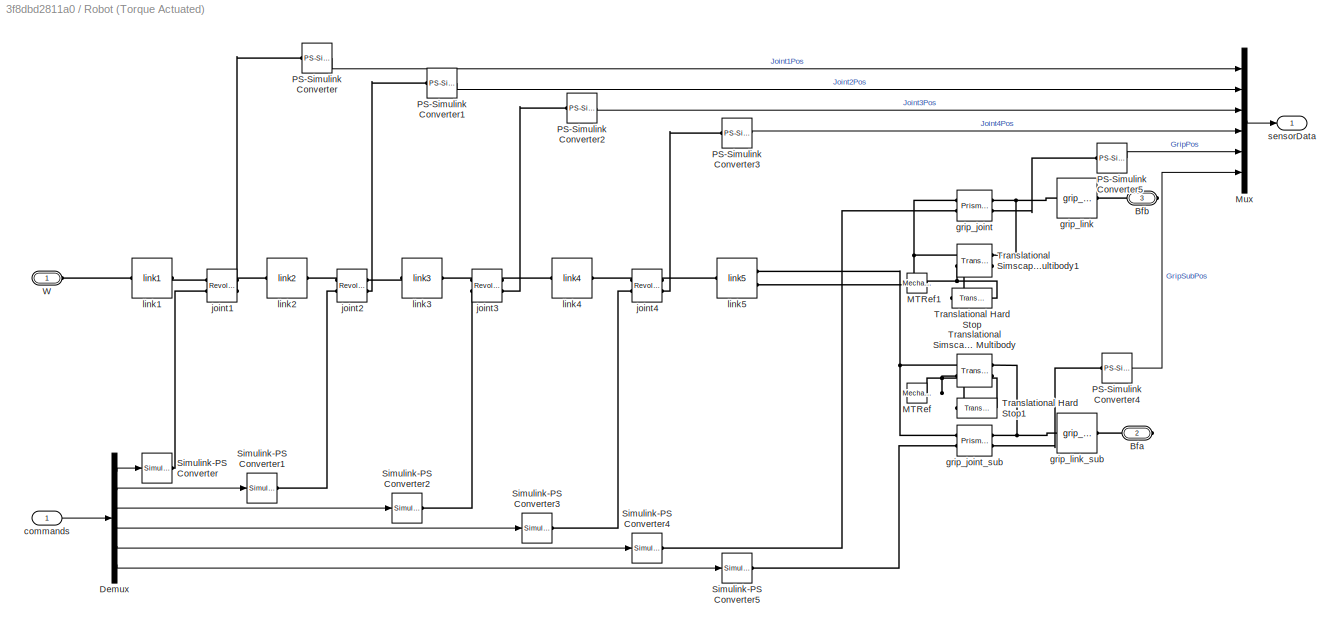
BLOCK [SubSystem] Robot (Torque Actuated)
  Ports = [1, 1, 0, 0, 0, 1, 2]
  RequestExecContextInheritance = off
BLOCK [PMIOPort] Robot (Torque Actuated)/Bfa
  Port = 2
  Side = Right
BLOCK [PMIOPort] Robot (Torque Actuated)/Bfb
  Port = 3
  Side = Right
BLOCK [Demux] Robot (Torque Actuated)/Demux
  DisplayOption = bar
  Outputs = 6
  Ports = [1, 6]
BLOCK [Reference] Robot (Torque Actuated)/MTRef  REF=fl_lib/Mechanical/Translational
Elements/Mechanical
Translational
Reference
  Ports = [0, 0, 0, 0, 0, 1]
  SourceBlock = fl_lib/Mechanical/Translational\nElements/Mechanical\nTranslational\nReference
  SourceProductBaseCode = SS
  SourceProductName = Simscape
  SourceType = Mechanical\nTranslational\nReference
BLOCK [Reference] Robot (Torque Actuated)/MTRef1  REF=fl_lib/Mechanical/Translational
Elements/Mechanical
Translational
Reference
  Ports = [0, 0, 0, 0, 0, 1]
  SourceBlock = fl_lib/Mechanical/Translational\nElements/Mechanical\nTranslational\nReference
  SourceProductBaseCode = SS
  SourceProductName = Simscape
  SourceType = Mechanical\nTranslational\nReference
BLOCK [Mux] Robot (Torque Actuated)/Mux
  DisplayOption = bar
  Inputs = 6
  Ports = [6, 1]
BLOCK [Reference] Robot (Torque Actuated)/PS-Simulink Converter  REF=nesl_utility/PS-Simulink
Converter
  Ports = [0, 1, 0, 0, 0, 1]
  SourceBlock = nesl_utility/PS-Simulink\nConverter
  SourceProductBaseCode = SS
  SourceProductName = Simscape
  SourceType = PS-Simulink\nConverter
BLOCK [Reference] Robot (Torque Actuated)/PS-Simulink Converter1  REF=nesl_utility/PS-Simulink
Converter
  Ports = [0, 1, 0, 0, 0, 1]
  SourceBlock = nesl_utility/PS-Simulink\nConverter
  SourceProductBaseCode = SS
  SourceProductName = Simscape
  SourceType = PS-Simulink\nConverter
BLOCK [Reference] Robot (Torque Actuated)/PS-Simulink Converter2  REF=nesl_utility/PS-Simulink
Converter
  Ports = [0, 1, 0, 0, 0, 1]
  SourceBlock = nesl_utility/PS-Simulink\nConverter
  SourceProductBaseCode = SS
  SourceProductName = Simscape
  SourceType = PS-Simulink\nConverter
BLOCK [Reference] Robot (Torque Actuated)/PS-Simulink Converter3  REF=nesl_utility/PS-Simulink
Converter
  Ports = [0, 1, 0, 0, 0, 1]
  SourceBlock = nesl_utility/PS-Simulink\nConverter
  SourceProductBaseCode = SS
  SourceProductName = Simscape
  SourceType = PS-Simulink\nConverter
BLOCK [Reference] Robot (Torque Actuated)/PS-Simulink Converter4  REF=nesl_utility/PS-Simulink
Converter
  Ports = [0, 1, 0, 0, 0, 1]
  SourceBlock = nesl_utility/PS-Simulink\nConverter
  SourceProductBaseCode = SS
  SourceProductName = Simscape
  SourceType = PS-Simulink\nConverter
BLOCK [Reference] Robot (Torque Actuated)/PS-Simulink Converter5  REF=nesl_utility/PS-Simulink
Converter
  Ports = [0, 1, 0, 0, 0, 1]
  SourceBlock = nesl_utility/PS-Simulink\nConverter
  SourceProductBaseCode = SS
  SourceProductName = Simscape
  SourceType = PS-Simulink\nConverter
BLOCK [Reference] Robot (Torque Actuated)/Simulink-PS Converter  REF=nesl_utility/Simulink-PS
Converter
  Ports = [1, 0, 0, 0, 0, 0, 1]
  SourceBlock = nesl_utility/Simulink-PS\nConverter
  SourceProductBaseCode = SS
  SourceProductName = Simscape
  SourceType = Simulink-PS\nConverter
BLOCK [Reference] Robot (Torque Actuated)/Simulink-PS Converter1  REF=nesl_utility/Simulink-PS
Converter
  Ports = [1, 0, 0, 0, 0, 0, 1]
  SourceBlock = nesl_utility/Simulink-PS\nConverter
  SourceProductBaseCode = SS
  SourceProductName = Simscape
  SourceType = Simulink-PS\nConverter
BLOCK [Reference] Robot (Torque Actuated)/Simulink-PS Converter2  REF=nesl_utility/Simulink-PS
Converter
  Ports = [1, 0, 0, 0, 0, 0, 1]
  SourceBlock = nesl_utility/Simulink-PS\nConverter
  SourceProductBaseCode = SS
  SourceProductName = Simscape
  SourceType = Simulink-PS\nConverter
BLOCK [Reference] Robot (Torque Actuated)/Simulink-PS Converter3  REF=nesl_utility/Simulink-PS
Converter
  Ports = [1, 0, 0, 0, 0, 0, 1]
  SourceBlock = nesl_utility/Simulink-PS\nConverter
  SourceProductBaseCode = SS
  SourceProductName = Simscape
  SourceType = Simulink-PS\nConverter
BLOCK [Reference] Robot (Torque Actuated)/Simulink-PS Converter4  REF=nesl_utility/Simulink-PS
Converter
  Ports = [1, 0, 0, 0, 0, 0, 1]
  SourceBlock = nesl_utility/Simulink-PS\nConverter
  SourceProductBaseCode = SS
  SourceProductName = Simscape
  SourceType = Simulink-PS\nConverter
BLOCK [Reference] Robot (Torque Actuated)/Simulink-PS Converter5  REF=nesl_utility/Simulink-PS
Converter
  Ports = [1, 0, 0, 0, 0, 0, 1]
  SourceBlock = nesl_utility/Simulink-PS\nConverter
  SourceProductBaseCode = SS
  SourceProductName = Simscape
  SourceType = Simulink-PS\nConverter
BLOCK [Reference] Robot (Torque Actuated)/Translational Hard Stop  REF=fl_lib/Mechanical/Translational
Elements/Translational Hard
Stop
  Ports = [0, 0, 0, 0, 0, 1, 1]
  SourceBlock = fl_lib/Mechanical/Translational\nElements/Translational Hard\nStop
  SourceProductBaseCode = SS
  SourceProductName = Simscape
  SourceType = Translational Hard\nStop
BLOCK [Reference] Robot (Torque Actuated)/Translational Hard Stop1  REF=fl_lib/Mechanical/Translational
Elements/Translational Hard
Stop
  Ports = [0, 0, 0, 0, 0, 1, 1]
  SourceBlock = fl_lib/Mechanical/Translational\nElements/Translational Hard\nStop
  SourceProductBaseCode = SS
  SourceProductName = Simscape
  SourceType = Translational Hard\nStop
BLOCK [Reference] Robot (Torque Actuated)/Translational Simscape Multibody  REF=Multibody_Multiphysics_Lib/Interfaces/Translational
Simscape Multibody
  Ports = [0, 0, 0, 0, 0, 2, 2]
  SourceBlock = Multibody_Multiphysics_Lib/Interfaces/Translational\nSimscape Multibody
  SourceProductName = Simscape Multibody Multiphysics Library
  SourceType = SubSystem
BLOCK [Reference] Robot (Torque Actuated)/Translational Simscape Multibody1  REF=Multibody_Multiphysics_Lib/Interfaces/Translational
Simscape Multibody
  Ports = [0, 0, 0, 0, 0, 2, 2]
  SourceBlock = Multibody_Multiphysics_Lib/Interfaces/Translational\nSimscape Multibody
  SourceProductName = Simscape Multibody Multiphysics Library
  SourceType = SubSystem
BLOCK [PMIOPort] Robot (Torque Actuated)/W
  Side = Left
BLOCK [Inport] Robot (Torque Actuated)/commands
  IconDisplay = Port number
BLOCK [Reference] Robot (Torque Actuated)/grip_joint  REF=sm_lib/Joints/Prismatic
Joint
  Ports = [0, 0, 0, 0, 0, 2, 2]
  SourceBlock = sm_lib/Joints/Prismatic\nJoint
  SourceProductBaseCode = MS
  SourceProductName = Simscape Multibody
  SourceType = Prismatic\nJoint
BLOCK [Reference] Robot (Torque Actuated)/grip_joint_sub  REF=sm_lib/Joints/Prismatic
Joint
  Ports = [0, 0, 0, 0, 0, 2, 2]
  SourceBlock = sm_lib/Joints/Prismatic\nJoint
  SourceProductBaseCode = MS
  SourceProductName = Simscape Multibody
  SourceType = Prismatic\nJoint
BLOCK [Reference] Robot (Torque Actuated)/grip_link  REF=$bdroot/Robot 
(Motion Actuated)/grip_link
  Ports = [0, 0, 0, 0, 0, 1, 1]
  SourceBlock = $bdroot/Robot \n(Motion Actuated)/grip_link
BLOCK [Reference] Robot (Torque Actuated)/grip_link_sub  REF=$bdroot/Robot 
(Motion Actuated)/grip_link_sub
  Ports = [0, 0, 0, 0, 0, 1, 1]
  SourceBlock = $bdroot/Robot \n(Motion Actuated)/grip_link_sub
BLOCK [Reference] Robot (Torque Actuated)/joint1  REF=sm_lib/Joints/Revolute Joint
  Ports = [0, 0, 0, 0, 0, 2, 2]
  SourceBlock = sm_lib/Joints/Revolute Joint
  SourceProductBaseCode = MS
  SourceProductName = Simscape Multibody
  SourceType = Revolute Joint
BLOCK [Reference] Robot (Torque Actuated)/joint2  REF=sm_lib/Joints/Revolute Joint
  Ports = [0, 0, 0, 0, 0, 2, 2]
  SourceBlock = sm_lib/Joints/Revolute Joint
  SourceProductBaseCode = MS
  SourceProductName = Simscape Multibody
  SourceType = Revolute Joint
BLOCK [Reference] Robot (Torque Actuated)/joint3  REF=sm_lib/Joints/Revolute Joint
  Ports = [0, 0, 0, 0, 0, 2, 2]
  SourceBlock = sm_lib/Joints/Revolute Joint
  SourceProductBaseCode = MS
  SourceProductName = Simscape Multibody
  SourceType = Revolute Joint
BLOCK [Reference] Robot (Torque Actuated)/joint4  REF=sm_lib/Joints/Revolute Joint
  Ports = [0, 0, 0, 0, 0, 2, 2]
  SourceBlock = sm_lib/Joints/Revolute Joint
  SourceProductBaseCode = MS
  SourceProductName = Simscape Multibody
  SourceType = Revolute Joint
BLOCK [Reference] Robot (Torque Actuated)/link1  REF=$bdroot/Robot 
(Motion Actuated)/link1
  Ports = [0, 0, 0, 0, 0, 1, 1]
  SourceBlock = $bdroot/Robot \n(Motion Actuated)/link1
BLOCK [Reference] Robot (Torque Actuated)/link2  REF=$bdroot/Robot 
(Motion Actuated)/link2
  Ports = [0, 0, 0, 0, 0, 1, 1]
  SourceBlock = $bdroot/Robot \n(Motion Actuated)/link2
BLOCK [Reference] Robot (Torque Actuated)/link3  REF=$bdroot/Robot 
(Motion Actuated)/link3
  Ports = [0, 0, 0, 0, 0, 1, 1]
  SourceBlock = $bdroot/Robot \n(Motion Actuated)/link3
BLOCK [Reference] Robot (Torque Actuated)/link4  REF=$bdroot/Robot 
(Motion Actuated)/link4
  Ports = [0, 0, 0, 0, 0, 1, 1]
  SourceBlock = $bdroot/Robot \n(Motion Actuated)/link4
BLOCK [Reference] Robot (Torque Actuated)/link5  REF=$bdroot/Robot 
(Motion Actuated)/link5
  Ports = [0, 0, 0, 0, 0, 1, 2]
  SourceBlock = $bdroot/Robot \n(Motion Actuated)/link5
BLOCK [Outport] Robot (Torque Actuated)/sensorData
  IconDisplay = Port number
BLOCK [SubSystem] Waypoint Tracking Environment 
  Ports = [2, 2, 0, 0, 0, 1]
  RequestExecContextInheritance = off
  Variant = on
  VariantControl = Variant1
BLOCK [Outport] Waypoint Tracking Environment / gripForce
  IconDisplay = Port number
  Port = 2
BLOCK [SubSystem] Waypoint Tracking Environment /Motion Actuated
  Ports = [2, 2, 0, 0, 0, 1]
  RequestExecContextInheritance = off
  VariantControl = actuatorType==1
BLOCK [Reference] Waypoint Tracking Environment /Motion Actuated/Ball and Floor  REF=$bdroot/Ball and Floor
  Ports = [0, 1, 0, 0, 0, 1, 3]
  SourceBlock = $bdroot/Ball and Floor
  SourceType = Ball and Floor
BLOCK [Reference] Waypoint Tracking Environment /Motion Actuated/Forward Kinematics  REF=$bdroot/Forward Kinematics
  Ports = [1, 1]
  SourceBlock = $bdroot/Forward Kinematics
  SourceType = SubSystem
BLOCK [SubSystem] Waypoint Tracking Environment /Motion Actuated/Interpreted Inverse Kinematics
  ErrorFcn = Stateflow.Translate.translate
  PermitHierarchicalResolution = ExplicitOnly
  Ports = [2, 2]
  RequestExecContextInheritance = off
  SFBlockType = MATLAB Function
  TreatAsAtomicUnit = on
BLOCK [Demux] Waypoint Tracking Environment /Motion Actuated/Interpreted Inverse Kinematics/ Demux 
  Outputs = 1
  Ports = [1, 1]
BLOCK [S-Function] Waypoint Tracking Environment /Motion Actuated/Interpreted Inverse Kinematics/ SFunction 
  EnableBusSupport = off
  FunctionName = sf_sfun
  PortCounts = [2 3]
  Ports = [2, 3]
  SFcnIsStateOwnerBlock = off
  SFunctionDeploymentMode = off
  Tag = Stateflow S-Function OpenManipulatorLib 1
BLOCK [Terminator] Waypoint Tracking Environment /Motion Actuated/Interpreted Inverse Kinematics/ Terminator 
BLOCK [Inport] Waypoint Tracking Environment /Motion Actuated/Interpreted Inverse Kinematics/eePosition
  IconDisplay = Port number
  Port = 2
BLOCK [Inport] Waypoint Tracking Environment /Motion Actuated/Interpreted Inverse Kinematics/initGuess
  IconDisplay = Port number
BLOCK [Outport] Waypoint Tracking Environment /Motion Actuated/Interpreted Inverse Kinematics/iterations
  IconDisplay = Port number
BLOCK [Outport] Waypoint Tracking Environment /Motion Actuated/Interpreted Inverse Kinematics/jointStates
  IconDisplay = Port number
  Port = 2
BLOCK [Reference] Waypoint Tracking Environment /Motion Actuated/MechanismConfiguration  REF=sm_lib/Utilities/Mechanism
Configuration
  Ports = [0, 0, 0, 0, 0, 0, 1]
  SourceBlock = sm_lib/Utilities/Mechanism\nConfiguration
  SourceProductBaseCode = MS
  SourceProductName = Simscape Multibody
  SourceType = Mechanism\nConfiguration
BLOCK [Mux] Waypoint Tracking Environment /Motion Actuated/Mux
  DisplayOption = bar
  Inputs = 2
  Ports = [2, 1]
BLOCK [RateTransition] Waypoint Tracking Environment /Motion Actuated/Rate Transition1
BLOCK [RateTransition] Waypoint Tracking Environment /Motion Actuated/Rate Transition2
BLOCK [Reference] Waypoint Tracking Environment /Motion Actuated/Robot (Motion Actuated)  REF=$bdroot/Robot 
(Motion Actuated)
  Ports = [1, 1, 0, 0, 0, 1, 2]
  SourceBlock = $bdroot/Robot \n(Motion Actuated)
BLOCK [Scope] Waypoint Tracking Environment /Motion Actuated/Scope
  Floating = off
  NumInputPorts = 1
  Ports = [1]
  ScopeSpecificationString = Simulink.scopes.TimeScopeBlockCfg('CurrentConfiguration', extmgr.ConfigurationSet(extmgr.Configuration('Core','General UI',true),extmgr.Configuration('Core','Source UI',true),extmgr.Configuration('Sources','WiredSimulink',true,'DataLoggingVariableName','ScopeData1'),extmgr.Configuration('Visuals','Time Domain',true),extmgr.Configuration('Tools','Plot Navigation',true),extmgr.Configuration('Tools',...<+40ch>
BLOCK [Reference] Waypoint Tracking Environment /Motion Actuated/Solver Configuration  REF=nesl_utility/Solver
Configuration
  Ports = [0, 0, 0, 0, 0, 0, 1]
  SourceBlock = nesl_utility/Solver\nConfiguration
  SourceProductBaseCode = SS
  SourceProductName = Simscape
  SourceType = Solver\nConfiguration
BLOCK [UnitDelay] Waypoint Tracking Environment /Motion Actuated/Unit Delay
  InputProcessing = Elements as channels (sample based)
  SampleTime = -1
BLOCK [PMIOPort] Waypoint Tracking Environment /Motion Actuated/W
  Side = Left
BLOCK [Reference] Waypoint Tracking Environment /Motion Actuated/World  REF=sm_lib/Frames and
Transforms/World Frame
  Ports = [0, 0, 0, 0, 0, 0, 1]
  SourceBlock = sm_lib/Frames and\nTransforms/World Frame
  SourceProductBaseCode = MS
  SourceProductName = Simscape Multibody
  SourceType = World Frame
BLOCK [Outport] Waypoint Tracking Environment /Motion Actuated/eePos
  IconDisplay = Port number
BLOCK [Inport] Waypoint Tracking Environment /Motion Actuated/grip
  IconDisplay = Port number
  Port = 2
BLOCK [Outport] Waypoint Tracking Environment /Motion Actuated/gripForce
  IconDisplay = Port number
  Port = 2
BLOCK [Inport] Waypoint Tracking Environment /Motion Actuated/pRef 
  IconDisplay = Port number
BLOCK [SubSystem] Waypoint Tracking Environment /Motion Actuated/world
  Ports = [0, 0, 0, 0, 0, 1, 1]
  RequestExecContextInheritance = off
BLOCK [PMIOPort] Waypoint Tracking Environment /Motion Actuated/world/F
  Side = Left
BLOCK [PMIOPort] Waypoint Tracking Environment /Motion Actuated/world/F1
  Port = 2
  Side = Right
BLOCK [Reference] Waypoint Tracking Environment /Motion Actuated/world/ReferenceFrame  REF=sm_lib/Frames and
Transforms/Reference
Frame
  Ports = [0, 0, 0, 0, 0, 0, 1]
  SourceBlock = sm_lib/Frames and\nTransforms/Reference\nFrame
  SourceProductBaseCode = MS
  SourceProductName = Simscape Multibody
  SourceType = Reference\nFrame
BLOCK [Reference] Waypoint Tracking Environment /Motion Actuated/world/world_fixed_OriginTransform  REF=sm_lib/Frames and
Transforms/Rigid
Transform
  Ports = [0, 0, 0, 0, 0, 1, 1]
  SourceBlock = sm_lib/Frames and\nTransforms/Rigid\nTransform
  SourceProductBaseCode = MS
  SourceProductName = Simscape Multibody
  SourceType = Rigid\nTransform
BLOCK [SubSystem] Waypoint Tracking Environment /Torque Actuated (Configuration Space Controller)
  Ports = [2, 2, 0, 0, 0, 1]
  RequestExecContextInheritance = off
  VariantControl = actuatorType==2
BLOCK [Reference] Waypoint Tracking Environment /Torque Actuated (Configuration Space Controller)/Ball and Floor  REF=$bdroot/Ball and Floor
  Ports = [0, 1, 0, 0, 0, 1, 3]
  SourceBlock = $bdroot/Ball and Floor
  SourceType = Ball and Floor
BLOCK [Reference] Waypoint Tracking Environment /Torque Actuated (Configuration Space Controller)/Forward Kinematics  REF=$bdroot/Forward Kinematics
  Ports = [1, 1]
  SourceBlock = $bdroot/Forward Kinematics
  SourceType = SubSystem
BLOCK [SubSystem] Waypoint Tracking Environment /Torque Actuated (Configuration Space Controller)/Interpreted Inverse Kinematics
  ErrorFcn = Stateflow.Translate.translate
  PermitHierarchicalResolution = ExplicitOnly
  Ports = [2, 2]
  RequestExecContextInheritance = off
  SFBlockType = MATLAB Function
  TreatAsAtomicUnit = on
BLOCK [Demux] Waypoint Tracking Environment /Torque Actuated (Configuration Space Controller)/Interpreted Inverse Kinematics/ Demux 
  Outputs = 1
  Ports = [1, 1]
BLOCK [S-Function] Waypoint Tracking Environment /Torque Actuated (Configuration Space Controller)/Interpreted Inverse Kinematics/ SFunction 
  EnableBusSupport = off
  FunctionName = sf_sfun
  PortCounts = [2 3]
  Ports = [2, 3]
  SFcnIsStateOwnerBlock = off
  SFunctionDeploymentMode = off
  Tag = Stateflow S-Function OpenManipulatorLib 2
BLOCK [Terminator] Waypoint Tracking Environment /Torque Actuated (Configuration Space Controller)/Interpreted Inverse Kinematics/ Terminator 
BLOCK [Inport] Waypoint Tracking Environment /Torque Actuated (Configuration Space Controller)/Interpreted Inverse Kinematics/eePosition
  IconDisplay = Port number
  Port = 2
BLOCK [Inport] Waypoint Tracking Environment /Torque Actuated (Configuration Space Controller)/Interpreted Inverse Kinematics/initGuess
  IconDisplay = Port number
BLOCK [Outport] Waypoint Tracking Environment /Torque Actuated (Configuration Space Controller)/Interpreted Inverse Kinematics/iterations
  IconDisplay = Port number
BLOCK [Outport] Waypoint Tracking Environment /Torque Actuated (Configuration Space Controller)/Interpreted Inverse Kinematics/jointStates
  IconDisplay = Port number
  Port = 2
BLOCK [Reference] Waypoint Tracking Environment /Torque Actuated (Configuration Space Controller)/Joint Controller (Configuration Space)  REF=$bdroot/Joint Controller (Configuration Space)
  Ports = [2, 1]
  SourceBlock = $bdroot/Joint Controller (Configuration Space)
BLOCK [Reference] Waypoint Tracking Environment /Torque Actuated (Configuration Space Controller)/MechanismConfiguration  REF=sm_lib/Utilities/Mechanism
Configuration
  Ports = [0, 0, 0, 0, 0, 0, 1]
  SourceBlock = sm_lib/Utilities/Mechanism\nConfiguration
  SourceProductBaseCode = MS
  SourceProductName = Simscape Multibody
  SourceType = Mechanism\nConfiguration
BLOCK [Mux] Waypoint Tracking Environment /Torque Actuated (Configuration Space Controller)/Mux
  DisplayOption = bar
  Inputs = 2
  Ports = [2, 1]
BLOCK [RateTransition] Waypoint Tracking Environment /Torque Actuated (Configuration Space Controller)/Rate Transition1
BLOCK [RateTransition] Waypoint Tracking Environment /Torque Actuated (Configuration Space Controller)/Rate Transition2
  OutPortSampleTimeOpt = Inherit
BLOCK [RateTransition] Waypoint Tracking Environment /Torque Actuated (Configuration Space Controller)/Rate Transition4
BLOCK [RateTransition] Waypoint Tracking Environment /Torque Actuated (Configuration Space Controller)/Rate Transition5
  OutPortSampleTimeOpt = Inherit
BLOCK [RateTransition] Waypoint Tracking Environment /Torque Actuated (Configuration Space Controller)/Rate Transition6
BLOCK [Reference] Waypoint Tracking Environment /Torque Actuated (Configuration Space Controller)/Robot (Torque Actuated)  REF=$bdroot/Robot 
(Torque Actuated)
  Ports = [1, 1, 0, 0, 0, 1, 2]
  SourceBlock = $bdroot/Robot \n(Torque Actuated)
BLOCK [Scope] Waypoint Tracking Environment /Torque Actuated (Configuration Space Controller)/Scope
  Floating = off
  NumInputPorts = 1
  Ports = [1]
  ScopeSpecificationString = Simulink.scopes.TimeScopeBlockCfg('CurrentConfiguration', extmgr.ConfigurationSet(extmgr.Configuration('Core','General UI',true),extmgr.Configuration('Core','Source UI',true),extmgr.Configuration('Sources','WiredSimulink',true),extmgr.Configuration('Visuals','Time Domain',true,'SerializedDisplays',{struct('MinYLimReal','18.75','MaxYLimReal','31.25','YLabelReal','','MinYLimMag','18.75','MaxYLimMag'...<+1341ch>
BLOCK [Reference] Waypoint Tracking Environment /Torque Actuated (Configuration Space Controller)/Solver Configuration  REF=nesl_utility/Solver
Configuration
  Ports = [0, 0, 0, 0, 0, 0, 1]
  SourceBlock = nesl_utility/Solver\nConfiguration
  SourceProductBaseCode = SS
  SourceProductName = Simscape
  SourceType = Solver\nConfiguration
BLOCK [PMIOPort] Waypoint Tracking Environment /Torque Actuated (Configuration Space Controller)/W
  Side = Left
BLOCK [Reference] Waypoint Tracking Environment /Torque Actuated (Configuration Space Controller)/World  REF=sm_lib/Frames and
Transforms/World Frame
  Ports = [0, 0, 0, 0, 0, 0, 1]
  SourceBlock = sm_lib/Frames and\nTransforms/World Frame
  SourceProductBaseCode = MS
  SourceProductName = Simscape Multibody
  SourceType = World Frame
BLOCK [Outport] Waypoint Tracking Environment /Torque Actuated (Configuration Space Controller)/eePos
  IconDisplay = Port number
BLOCK [Inport] Waypoint Tracking Environment /Torque Actuated (Configuration Space Controller)/grip
  IconDisplay = Port number
  Port = 2
BLOCK [Outport] Waypoint Tracking Environment /Torque Actuated (Configuration Space Controller)/gripForce
  IconDisplay = Port number
  Port = 2
BLOCK [Inport] Waypoint Tracking Environment /Torque Actuated (Configuration Space Controller)/pRef 
  IconDisplay = Port number
BLOCK [SubSystem] Waypoint Tracking Environment /Torque Actuated (Configuration Space Controller)/world
  Ports = [0, 0, 0, 0, 0, 1, 1]
  RequestExecContextInheritance = off
BLOCK [PMIOPort] Waypoint Tracking Environment /Torque Actuated (Configuration Space Controller)/world/F
  Side = Left
BLOCK [PMIOPort] Waypoint Tracking Environment /Torque Actuated (Configuration Space Controller)/world/F1
  Port = 2
  Side = Right
BLOCK [Reference] Waypoint Tracking Environment /Torque Actuated (Configuration Space Controller)/world/ReferenceFrame  REF=sm_lib/Frames and
Transforms/Reference
Frame
  Ports = [0, 0, 0, 0, 0, 0, 1]
  SourceBlock = sm_lib/Frames and\nTransforms/Reference\nFrame
  SourceProductBaseCode = MS
  SourceProductName = Simscape Multibody
  SourceType = Reference\nFrame
BLOCK [Reference] Waypoint Tracking Environment /Torque Actuated (Configuration Space Controller)/world/world_fixed_OriginTransform  REF=sm_lib/Frames and
Transforms/Rigid
Transform
  Ports = [0, 0, 0, 0, 0, 1, 1]
  SourceBlock = sm_lib/Frames and\nTransforms/Rigid\nTransform
  SourceProductBaseCode = MS
  SourceProductName = Simscape Multibody
  SourceType = Rigid\nTransform
BLOCK [SubSystem] Waypoint Tracking Environment /Torque Actuated (Task Space Controller)
  Ports = [2, 2, 0, 0, 0, 1]
  RequestExecContextInheritance = off
  VariantControl = actuatorType==3
BLOCK [Reference] Waypoint Tracking Environment /Torque Actuated (Task Space Controller)/Ball and Floor  REF=$bdroot/Ball and Floor
  Ports = [0, 1, 0, 0, 0, 1, 3]
  SourceBlock = $bdroot/Ball and Floor
  SourceType = Ball and Floor
BLOCK [Reference] Waypoint Tracking Environment /Torque Actuated (Task Space Controller)/Forward Kinematics  REF=$bdroot/Forward Kinematics
  Ports = [1, 1]
  SourceBlock = $bdroot/Forward Kinematics
  SourceType = SubSystem
BLOCK [Reference] Waypoint Tracking Environment /Torque Actuated (Task Space Controller)/Joint Controller (Task Space)  REF=$bdroot/Joint Controller (Task Space)
  Ports = [3, 1]
  SourceBlock = $bdroot/Joint Controller (Task Space)
BLOCK [Reference] Waypoint Tracking Environment /Torque Actuated (Task Space Controller)/MechanismConfiguration  REF=sm_lib/Utilities/Mechanism
Configuration
  Ports = [0, 0, 0, 0, 0, 0, 1]
  SourceBlock = sm_lib/Utilities/Mechanism\nConfiguration
  SourceProductBaseCode = MS
  SourceProductName = Simscape Multibody
  SourceType = Mechanism\nConfiguration
BLOCK [Mux] Waypoint Tracking Environment /Torque Actuated (Task Space Controller)/Mux
  DisplayOption = bar
  Inputs = 2
  Ports = [2, 1]
BLOCK [RateTransition] Waypoint Tracking Environment /Torque Actuated (Task Space Controller)/Rate Transition
BLOCK [RateTransition] Waypoint Tracking Environment /Torque Actuated (Task Space Controller)/Rate Transition1
BLOCK [RateTransition] Waypoint Tracking Environment /Torque Actuated (Task Space Controller)/Rate Transition2
  OutPortSampleTimeOpt = Inherit
BLOCK [RateTransition] Waypoint Tracking Environment /Torque Actuated (Task Space Controller)/Rate Transition3
BLOCK [RateTransition] Waypoint Tracking Environment /Torque Actuated (Task Space Controller)/Rate Transition4
BLOCK [Reference] Waypoint Tracking Environment /Torque Actuated (Task Space Controller)/Robot (Torque Actuated)  REF=$bdroot/Robot 
(Torque Actuated)
  Ports = [1, 1, 0, 0, 0, 1, 2]
  SourceBlock = $bdroot/Robot \n(Torque Actuated)
BLOCK [Reference] Waypoint Tracking Environment /Torque Actuated (Task Space Controller)/Solver Configuration  REF=nesl_utility/Solver
Configuration
  Ports = [0, 0, 0, 0, 0, 0, 1]
  SourceBlock = nesl_utility/Solver\nConfiguration
  SourceProductBaseCode = SS
  SourceProductName = Simscape
  SourceType = Solver\nConfiguration
BLOCK [PMIOPort] Waypoint Tracking Environment /Torque Actuated (Task Space Controller)/W
  Side = Left
BLOCK [Reference] Waypoint Tracking Environment /Torque Actuated (Task Space Controller)/World  REF=sm_lib/Frames and
Transforms/World Frame
  Ports = [0, 0, 0, 0, 0, 0, 1]
  SourceBlock = sm_lib/Frames and\nTransforms/World Frame
  SourceProductBaseCode = MS
  SourceProductName = Simscape Multibody
  SourceType = World Frame
BLOCK [Outport] Waypoint Tracking Environment /Torque Actuated (Task Space Controller)/eePos
  IconDisplay = Port number
BLOCK [Inport] Waypoint Tracking Environment /Torque Actuated (Task Space Controller)/grip
  IconDisplay = Port number
  Port = 2
BLOCK [Outport] Waypoint Tracking Environment /Torque Actuated (Task Space Controller)/gripForce
  IconDisplay = Port number
  Port = 2
BLOCK [Inport] Waypoint Tracking Environment /Torque Actuated (Task Space Controller)/pRef 
  IconDisplay = Port number
BLOCK [SubSystem] Waypoint Tracking Environment /Torque Actuated (Task Space Controller)/world
  Ports = [0, 0, 0, 0, 0, 1, 1]
  RequestExecContextInheritance = off
BLOCK [PMIOPort] Waypoint Tracking Environment /Torque Actuated (Task Space Controller)/world/F
  Side = Left
BLOCK [PMIOPort] Waypoint Tracking Environment /Torque Actuated (Task Space Controller)/world/F1
  Port = 2
  Side = Right
BLOCK [Reference] Waypoint Tracking Environment /Torque Actuated (Task Space Controller)/world/ReferenceFrame  REF=sm_lib/Frames and
Transforms/Reference
Frame
  Ports = [0, 0, 0, 0, 0, 0, 1]
  SourceBlock = sm_lib/Frames and\nTransforms/Reference\nFrame
  SourceProductBaseCode = MS
  SourceProductName = Simscape Multibody
  SourceType = Reference\nFrame
BLOCK [Reference] Waypoint Tracking Environment /Torque Actuated (Task Space Controller)/world/world_fixed_OriginTransform  REF=sm_lib/Frames and
Transforms/Rigid
Transform
  Ports = [0, 0, 0, 0, 0, 1, 1]
  SourceBlock = sm_lib/Frames and\nTransforms/Rigid\nTransform
  SourceProductBaseCode = MS
  SourceProductName = Simscape Multibody
  SourceType = Rigid\nTransform
BLOCK [PMIOPort] Waypoint Tracking Environment /W
  Side = Left
BLOCK [Outport] Waypoint Tracking Environment /eePos
  IconDisplay = Port number
BLOCK [Inport] Waypoint Tracking Environment /grip
  IconDisplay = Port number
  Port = 2
BLOCK [Inport] Waypoint Tracking Environment /pRef 
  IconDisplay = Port number
BLOCK [SubSystem] Waypoint Visuals
  CopyFcn = set_param(gcb,'LinkStatus','breakWithoutHierarchy');
  Ports = [0, 0, 0, 0, 0, 1]
  RequestExecContextInheritance = off
BLOCK [Reference] Waypoint Visuals/Trajectory Spline  REF=sm_lib/Curves and Surfaces/Spline
  Ports = [0, 0, 0, 0, 0, 1, 1]
  SourceBlock = sm_lib/Curves and Surfaces/Spline
  SourceProductBaseCode = MS
  SourceProductName = Simscape Multibody
  SourceType = Spline
BLOCK [PMIOPort] Waypoint Visuals/W
  Side = Left
ANNOTATION (root): ROBOTIS OpenManipulator Chain Example Library <copyright redacted>
ANNOTATION Ball Prediction: Predict Ball Trajectory X
ANNOTATION Ball Prediction: Predict Ball Trajectory Z
ANNOTATION Ball and Floor: Ball
ANNOTATION Joint Controller (Configuration Space): Input Processing
ANNOTATION Joint Controller (Configuration Space): Output Processing
ANNOTATION Joint Controller (Task Space): F_{joint} = J^T(q) F_{ee}
ANNOTATION Joint Controller (Task Space): Feedback
ANNOTATION Joint Controller (Task Space): Feedforward
ANNOTATION Joint Controller (Task Space): Input Processing
LINE Ball Prediction/Buffer X:1 -> Ball Prediction/Polynomial Fit X:1
LINE Ball Prediction/Buffer Y:1 -> Ball Prediction/Polynomial Fit Y:1
LINE Ball Prediction/Buffer Z:1 -> Ball Prediction/Polynomial Fit Z:1
LINE Ball Prediction/Constant:1 -> Ball Prediction/Delay:1
NET Ball Prediction/Delay:1 -> Ball Prediction/Polynomial Eval X:enable, Ball Prediction/Polynomial Eval Y:enable, Ball Prediction/Polynomial Eval Z:enable, Ball Prediction/Polynomial Fit X:enable, Ball Prediction/Polynomial Fit Y:enable, Ball Prediction/Polynomial Fit Z:enable
LINE Ball Prediction/Demux:1 -> Ball Prediction/Buffer X:1
LINE Ball Prediction/Demux:2 -> Ball Prediction/Buffer Y:1
LINE Ball Prediction/Demux:3 -> Ball Prediction/Buffer Z:1
LINE Ball Prediction/Mux:1 -> Ball Prediction/prediction:1
LINE Ball Prediction/Polynomial Eval X:1 -> Ball Prediction/Mux:1
LINE Ball Prediction/Polynomial Eval Y:1 -> Ball Prediction/Mux:2
LINE Ball Prediction/Polynomial Eval Z:1 -> Ball Prediction/Mux:3
LINE Ball Prediction/Polynomial Fit X:1 -> Ball Prediction/Polynomial Eval X:1
LINE Ball Prediction/Polynomial Fit Y:1 -> Ball Prediction/Polynomial Eval Y:1
LINE Ball Prediction/Polynomial Fit Z:1 -> Ball Prediction/Polynomial Eval Z:1
LINE Ball Prediction/sensorInput:1 -> Ball Prediction/Demux:1
LINE Ball and Floor/Bus Selector1:1 -> Ball and Floor/Mux:1
LINE Ball and Floor/Bus Selector:1 -> Ball and Floor/Mux:2
LINE Ball and Floor/Mux:1 -> Ball and Floor/grip Force:1
LINE Ball and Floor/Sphere to Plane Force (Ball-Floor Contact):1 -> Ball and Floor/Terminator2:1
LINE Ball and Floor/Sphere to Plane Force (Ball-Gripper Contact)1:1 -> Ball and Floor/Bus Selector:1
LINE Ball and Floor/Sphere to Plane Force (Ball-Gripper Contact):1 -> Ball and Floor/Bus Selector1:1
LINE Enabled Polynomial Eval/Coefficients:1 -> Enabled Polynomial Eval/Polynomial Evaluation:2
LINE Enabled Polynomial Eval/Constant:1 -> Enabled Polynomial Eval/Polynomial Evaluation:1
LINE Enabled Polynomial Eval/Polynomial Evaluation:1 -> Enabled Polynomial Eval/Prediction:1
LINE Enabled Polynomial Fit/Data:1 -> Enabled Polynomial Fit/Least Squares Polynomial Fit:1
LINE Enabled Polynomial Fit/Least Squares Polynomial Fit:1 -> Enabled Polynomial Fit/Coefficients:1
LINE Forward Kinematics/Coordinate Transformation Conversion:1 -> Forward Kinematics/eePosition:1
LINE Forward Kinematics/Get Transform:1 -> Forward Kinematics/Coordinate Transformation Conversion:1
LINE Forward Kinematics/jointStates:1 -> Forward Kinematics/Get Transform:1
LINE Input Trajectory/Constant3:1 -> Input Trajectory/wayPoints:1
LINE Input Trajectory/Constant:1 -> Input Trajectory/trajectory:1
LINE Joint Controller (Configuration Space)/Add:1 -> Joint Controller (Configuration Space)/Saturate Inputs:1
LINE Joint Controller (Configuration Space)/Closed Gripper Position:1 -> Joint Controller (Configuration Space)/Switch1:1
LINE Joint Controller (Configuration Space)/Discrete Derivative1:1 -> Joint Controller (Configuration Space)/Inverse Dynamics (Feedforward Control):3
NET Joint Controller (Configuration Space)/Discrete Derivative:1 -> Joint Controller (Configuration Space)/Discrete Derivative1:1, Joint Controller (Configuration Space)/Inverse Dynamics (Feedforward Control):2
LINE Joint Controller (Configuration Space)/External Force:1 -> Joint Controller (Configuration Space)/Inverse Dynamics (Feedforward Control):4
LINE Joint Controller (Configuration Space)/Input Filter:1 -> Joint Controller (Configuration Space)/Input Rate Limiter:1
LINE Joint Controller (Configuration Space)/Input Rate Limiter:1 -> Joint Controller (Configuration Space)/Mux:1
LINE Joint Controller (Configuration Space)/Inverse Dynamics (Feedforward Control):1 -> Joint Controller (Configuration Space)/Output Filter:1
NET Joint Controller (Configuration Space)/Mux:1 -> Joint Controller (Configuration Space)/Discrete Derivative:1, Joint Controller (Configuration Space)/Inverse Dynamics (Feedforward Control):1, Joint Controller (Configuration Space)/PID Compensator (Feedback Control):1
LINE Joint Controller (Configuration Space)/Open Gripper Position:1 -> Joint Controller (Configuration Space)/Switch1:3
LINE Joint Controller (Configuration Space)/Output Filter:1 -> Joint Controller (Configuration Space)/Add:1
LINE Joint Controller (Configuration Space)/PID Compensator (Feedback Control)/Demux1:1 -> Joint Controller (Configuration Space)/PID Compensator (Feedback Control)/Sum:2
LINE Joint Controller (Configuration Space)/PID Compensator (Feedback Control)/Demux1:2 -> Joint Controller (Configuration Space)/PID Compensator (Feedback Control)/Sum1:2
LINE Joint Controller (Configuration Space)/PID Compensator (Feedback Control)/Demux1:3 -> Joint Controller (Configuration Space)/PID Compensator (Feedback Control)/Sum2:2
LINE Joint Controller (Configuration Space)/PID Compensator (Feedback Control)/Demux1:4 -> Joint Controller (Configuration Space)/PID Compensator (Feedback Control)/Sum3:2
LINE Joint Controller (Configuration Space)/PID Compensator (Feedback Control)/Demux1:5 -> Joint Controller (Configuration Space)/PID Compensator (Feedback Control)/Sum4:2
LINE Joint Controller (Configuration Space)/PID Compensator (Feedback Control)/Demux1:6 -> Joint Controller (Configuration Space)/PID Compensator (Feedback Control)/Sum5:2
LINE Joint Controller (Configuration Space)/PID Compensator (Feedback Control)/Demux:1 -> Joint Controller (Configuration Space)/PID Compensator (Feedback Control)/Sum:1
LINE Joint Controller (Configuration Space)/PID Compensator (Feedback Control)/Demux:2 -> Joint Controller (Configuration Space)/PID Compensator (Feedback Control)/Sum1:1
LINE Joint Controller (Configuration Space)/PID Compensator (Feedback Control)/Demux:3 -> Joint Controller (Configuration Space)/PID Compensator (Feedback Control)/Sum2:1
LINE Joint Controller (Configuration Space)/PID Compensator (Feedback Control)/Demux:4 -> Joint Controller (Configuration Space)/PID Compensator (Feedback Control)/Sum3:1
LINE Joint Controller (Configuration Space)/PID Compensator (Feedback Control)/Demux:5 -> Joint Controller (Configuration Space)/PID Compensator (Feedback Control)/Sum4:1
LINE Joint Controller (Configuration Space)/PID Compensator (Feedback Control)/Demux:6 -> Joint Controller (Configuration Space)/PID Compensator (Feedback Control)/Sum5:1
LINE Joint Controller (Configuration Space)/PID Compensator (Feedback Control)/Discrete PID Controller1:1 -> Joint Controller (Configuration Space)/PID Compensator (Feedback Control)/Mux:2
LINE Joint Controller (Configuration Space)/PID Compensator (Feedback Control)/Discrete PID Controller2:1 -> Joint Controller (Configuration Space)/PID Compensator (Feedback Control)/Mux:3
LINE Joint Controller (Configuration Space)/PID Compensator (Feedback Control)/Discrete PID Controller3:1 -> Joint Controller (Configuration Space)/PID Compensator (Feedback Control)/Mux:4
LINE Joint Controller (Configuration Space)/PID Compensator (Feedback Control)/Discrete PID Controller4:1 -> Joint Controller (Configuration Space)/PID Compensator (Feedback Control)/Mux:5
LINE Joint Controller (Configuration Space)/PID Compensator (Feedback Control)/Discrete PID Controller5:1 -> Joint Controller (Configuration Space)/PID Compensator (Feedback Control)/Mux:6
LINE Joint Controller (Configuration Space)/PID Compensator (Feedback Control)/Discrete PID Controller:1 -> Joint Controller (Configuration Space)/PID Compensator (Feedback Control)/Mux:1
LINE Joint Controller (Configuration Space)/PID Compensator (Feedback Control)/Mux:1 -> Joint Controller (Configuration Space)/PID Compensator (Feedback Control)/cmd:1
LINE Joint Controller (Configuration Space)/PID Compensator (Feedback Control)/Sum1:1 -> Joint Controller (Configuration Space)/PID Compensator (Feedback Control)/Discrete PID Controller1:1
LINE Joint Controller (Configuration Space)/PID Compensator (Feedback Control)/Sum2:1 -> Joint Controller (Configuration Space)/PID Compensator (Feedback Control)/Discrete PID Controller2:1
LINE Joint Controller (Configuration Space)/PID Compensator (Feedback Control)/Sum3:1 -> Joint Controller (Configuration Space)/PID Compensator (Feedback Control)/Discrete PID Controller3:1
LINE Joint Controller (Configuration Space)/PID Compensator (Feedback Control)/Sum4:1 -> Joint Controller (Configuration Space)/PID Compensator (Feedback Control)/Discrete PID Controller4:1
LINE Joint Controller (Configuration Space)/PID Compensator (Feedback Control)/Sum5:1 -> Joint Controller (Configuration Space)/PID Compensator (Feedback Control)/Discrete PID Controller5:1
LINE Joint Controller (Configuration Space)/PID Compensator (Feedback Control)/Sum:1 -> Joint Controller (Configuration Space)/PID Compensator (Feedback Control)/Discrete PID Controller:1
LINE Joint Controller (Configuration Space)/PID Compensator (Feedback Control)/meas:1 -> Joint Controller (Configuration Space)/PID Compensator (Feedback Control)/Demux1:1
LINE Joint Controller (Configuration Space)/PID Compensator (Feedback Control)/ref:1 -> Joint Controller (Configuration Space)/PID Compensator (Feedback Control)/Demux:1
LINE Joint Controller (Configuration Space)/PID Compensator (Feedback Control):1 -> Joint Controller (Configuration Space)/Add:2
LINE Joint Controller (Configuration Space)/Saturate Inputs/Mux:1 -> Joint Controller (Configuration Space)/Saturate Inputs/sat:1
LINE Joint Controller (Configuration Space)/Saturate Inputs/Saturate Gripper Force:1 -> Joint Controller (Configuration Space)/Saturate Inputs/Mux:2
LINE Joint Controller (Configuration Space)/Saturate Inputs/Saturate Joint Torques:1 -> Joint Controller (Configuration Space)/Saturate Inputs/Mux:1
LINE Joint Controller (Configuration Space)/Saturate Inputs/Select Gripper Forces:1 -> Joint Controller (Configuration Space)/Saturate Inputs/Saturate Gripper Force:1
LINE Joint Controller (Configuration Space)/Saturate Inputs/Select Joint Torques:1 -> Joint Controller (Configuration Space)/Saturate Inputs/Saturate Joint Torques:1
NET Joint Controller (Configuration Space)/Saturate Inputs/inp:1 -> Joint Controller (Configuration Space)/Saturate Inputs/Select Gripper Forces:1, Joint Controller (Configuration Space)/Saturate Inputs/Select Joint Torques:1
LINE Joint Controller (Configuration Space)/Saturate Inputs:1 -> Joint Controller (Configuration Space)/inp:1
LINE Joint Controller (Configuration Space)/Select Grip Command:1 -> Joint Controller (Configuration Space)/Switch1:2
LINE Joint Controller (Configuration Space)/Select Revolute Joints:1 -> Joint Controller (Configuration Space)/Input Filter:1
LINE Joint Controller (Configuration Space)/Switch1:1 -> Joint Controller (Configuration Space)/Mux:2
LINE Joint Controller (Configuration Space)/meas:1 -> Joint Controller (Configuration Space)/PID Compensator (Feedback Control):2
NET Joint Controller (Configuration Space)/qRef:1 -> Joint Controller (Configuration Space)/Select Grip Command:1, Joint Controller (Configuration Space)/Select Revolute Joints:1
LINE Joint Controller (Task Space)/Closed:1 -> Joint Controller (Task Space)/Switch1:1
LINE Joint Controller (Task Space)/Constant:1 -> Joint Controller (Task Space)/Matrix Concatenate:1
LINE Joint Controller (Task Space)/Get Jacobian:1 -> Joint Controller (Task Space)/Transpose:1
LINE Joint Controller (Task Space)/Gravity Torque:1 -> Joint Controller (Task Space)/Sum1:2
LINE Joint Controller (Task Space)/Gripper Control/Demux1:1 -> Joint Controller (Task Space)/Gripper Control/Sum4:2
LINE Joint Controller (Task Space)/Gripper Control/Demux1:2 -> Joint Controller (Task Space)/Gripper Control/Sum5:2
LINE Joint Controller (Task Space)/Gripper Control/Demux:1 -> Joint Controller (Task Space)/Gripper Control/Sum4:1
LINE Joint Controller (Task Space)/Gripper Control/Demux:2 -> Joint Controller (Task Space)/Gripper Control/Sum5:1
LINE Joint Controller (Task Space)/Gripper Control/Discrete PID Controller1:1 -> Joint Controller (Task Space)/Gripper Control/Mux:2
LINE Joint Controller (Task Space)/Gripper Control/Discrete PID Controller:1 -> Joint Controller (Task Space)/Gripper Control/Mux:1
LINE Joint Controller (Task Space)/Gripper Control/Mux:1 -> Joint Controller (Task Space)/Gripper Control/gripForce:1
LINE Joint Controller (Task Space)/Gripper Control/Select Gripper Positions:1 -> Joint Controller (Task Space)/Gripper Control/Demux1:1
LINE Joint Controller (Task Space)/Gripper Control/Sum4:1 -> Joint Controller (Task Space)/Gripper Control/Discrete PID Controller:1
LINE Joint Controller (Task Space)/Gripper Control/Sum5:1 -> Joint Controller (Task Space)/Gripper Control/Discrete PID Controller1:1
LINE Joint Controller (Task Space)/Gripper Control/q:1 -> Joint Controller (Task Space)/Gripper Control/Select Gripper Positions:1
LINE Joint Controller (Task Space)/Gripper Control/qRef:1 -> Joint Controller (Task Space)/Gripper Control/Demux:1
LINE Joint Controller (Task Space)/Gripper Control:1 -> Joint Controller (Task Space)/Mux:2
LINE Joint Controller (Task Space)/Input Filter:1 -> Joint Controller (Task Space)/Rate Limiter:1
LINE Joint Controller (Task Space)/Matrix Concatenate:1 -> Joint Controller (Task Space)/Product:2
LINE Joint Controller (Task Space)/Mux:1 -> Joint Controller (Task Space)/Saturate Inputs:1
LINE Joint Controller (Task Space)/Open:1 -> Joint Controller (Task Space)/Switch1:3
LINE Joint Controller (Task Space)/PID Controller:1 -> Joint Controller (Task Space)/Matrix Concatenate:2
LINE Joint Controller (Task Space)/Product:1 -> Joint Controller (Task Space)/Sum1:1
LINE Joint Controller (Task Space)/Rate Limiter:1 -> Joint Controller (Task Space)/Sum:1
LINE Joint Controller (Task Space)/Saturate Inputs/Mux:1 -> Joint Controller (Task Space)/Saturate Inputs/sat:1
LINE Joint Controller (Task Space)/Saturate Inputs/Saturate Gripper Force:1 -> Joint Controller (Task Space)/Saturate Inputs/Mux:2
LINE Joint Controller (Task Space)/Saturate Inputs/Saturate Joint Torques:1 -> Joint Controller (Task Space)/Saturate Inputs/Mux:1
LINE Joint Controller (Task Space)/Saturate Inputs/Select Gripper Forces:1 -> Joint Controller (Task Space)/Saturate Inputs/Saturate Gripper Force:1
LINE Joint Controller (Task Space)/Saturate Inputs/Select Joint Torques:1 -> Joint Controller (Task Space)/Saturate Inputs/Saturate Joint Torques:1
NET Joint Controller (Task Space)/Saturate Inputs/inp:1 -> Joint Controller (Task Space)/Saturate Inputs/Select Gripper Forces:1, Joint Controller (Task Space)/Saturate Inputs/Select Joint Torques:1
LINE Joint Controller (Task Space)/Saturate Inputs:1 -> Joint Controller (Task Space)/inp:1
LINE Joint Controller (Task Space)/Select Grip Command:1 -> Joint Controller (Task Space)/Switch1:2
LINE Joint Controller (Task Space)/Select Revolute Joint Torques:1 -> Joint Controller (Task Space)/Mux:1
LINE Joint Controller (Task Space)/Select XYZ:1 -> Joint Controller (Task Space)/Input Filter:1
LINE Joint Controller (Task Space)/Sum1:1 -> Joint Controller (Task Space)/Select Revolute Joint Torques:1
LINE Joint Controller (Task Space)/Sum:1 -> Joint Controller (Task Space)/PID Controller:1
LINE Joint Controller (Task Space)/Switch1:1 -> Joint Controller (Task Space)/Gripper Control:2
LINE Joint Controller (Task Space)/Transpose:1 -> Joint Controller (Task Space)/Product:1
NET Joint Controller (Task Space)/pRef:1 -> Joint Controller (Task Space)/Select Grip Command:1, Joint Controller (Task Space)/Select XYZ:1
LINE Joint Controller (Task Space)/pos:1 -> Joint Controller (Task Space)/Sum:2
NET Joint Controller (Task Space)/q:1 -> Joint Controller (Task Space)/Get Jacobian:1, Joint Controller (Task Space)/Gravity Torque:1, Joint Controller (Task Space)/Gripper Control:1
LINE Position Camera Output/From1:1 -> Position Camera Output/Mux:1
LINE Position Camera Output/From2:1 -> Position Camera Output/Mux:3
LINE Position Camera Output/From:1 -> Position Camera Output/Mux:2
LINE Position Camera Output/Mux:1 -> Position Camera Output/Out1:1
LINE Position Camera Sensor/PS-Simulink Converter1:1 -> Position Camera Sensor/Rate Transition1:1
LINE Position Camera Sensor/PS-Simulink Converter2:1 -> Position Camera Sensor/Rate Transition2:1
LINE Position Camera Sensor/PS-Simulink Converter:1 -> Position Camera Sensor/Rate Transition:1
LINE Position Camera Sensor/Rate Transition1:1 -> Position Camera Sensor/Goto1:1
LINE Position Camera Sensor/Rate Transition2:1 -> Position Camera Sensor/Goto2:1
LINE Position Camera Sensor/Rate Transition:1 -> Position Camera Sensor/Goto:1
LINE Robot (Motion Actuated)/Demux:1 -> Robot (Motion Actuated)/Simulink-PS Converter1:1
LINE Robot (Motion Actuated)/Demux:2 -> Robot (Motion Actuated)/Simulink-PS Converter2:1
LINE Robot (Motion Actuated)/Demux:3 -> Robot (Motion Actuated)/Simulink-PS Converter3:1
LINE Robot (Motion Actuated)/Demux:4 -> Robot (Motion Actuated)/Simulink-PS Converter4:1
LINE Robot (Motion Actuated)/Demux:5 -> Robot (Motion Actuated)/Gain:1
LINE Robot (Motion Actuated)/Gain:1 -> Robot (Motion Actuated)/Simulink-PS Converter5:1
LINE Robot (Motion Actuated)/Mux:1 -> Robot (Motion Actuated)/sensorData:1
LINE Robot (Motion Actuated)/PS-Simulink Converter1:1 -> Robot (Motion Actuated)/Mux:2
LINE Robot (Motion Actuated)/PS-Simulink Converter2:1 -> Robot (Motion Actuated)/Mux:3
LINE Robot (Motion Actuated)/PS-Simulink Converter3:1 -> Robot (Motion Actuated)/Mux:4
LINE Robot (Motion Actuated)/PS-Simulink Converter4:1 -> Robot (Motion Actuated)/Terminator3:1
LINE Robot (Motion Actuated)/PS-Simulink Converter5:1 -> Robot (Motion Actuated)/Terminator1:1
LINE Robot (Motion Actuated)/PS-Simulink Converter6:1 -> Robot (Motion Actuated)/Terminator2:1
LINE Robot (Motion Actuated)/PS-Simulink Converter7:1 -> Robot (Motion Actuated)/Terminator4:1
LINE Robot (Motion Actuated)/PS-Simulink Converter8:1 -> Robot (Motion Actuated)/Mux:6
LINE Robot (Motion Actuated)/PS-Simulink Converter9:1 -> Robot (Motion Actuated)/Mux:5
LINE Robot (Motion Actuated)/PS-Simulink Converter:1 -> Robot (Motion Actuated)/Mux:1
LINE Robot (Motion Actuated)/commands:1 -> Robot (Motion Actuated)/Demux:1
LINE Robot (Torque Actuated)/Demux:1 -> Robot (Torque Actuated)/Simulink-PS Converter:1
LINE Robot (Torque Actuated)/Demux:2 -> Robot (Torque Actuated)/Simulink-PS Converter1:1
LINE Robot (Torque Actuated)/Demux:3 -> Robot (Torque Actuated)/Simulink-PS Converter2:1
LINE Robot (Torque Actuated)/Demux:4 -> Robot (Torque Actuated)/Simulink-PS Converter3:1
LINE Robot (Torque Actuated)/Demux:5 -> Robot (Torque Actuated)/Simulink-PS Converter4:1
LINE Robot (Torque Actuated)/Demux:6 -> Robot (Torque Actuated)/Simulink-PS Converter5:1
LINE Robot (Torque Actuated)/Mux:1 -> Robot (Torque Actuated)/sensorData:1
LINE Robot (Torque Actuated)/PS-Simulink Converter1:1 -> Robot (Torque Actuated)/Mux:2
LINE Robot (Torque Actuated)/PS-Simulink Converter2:1 -> Robot (Torque Actuated)/Mux:3
LINE Robot (Torque Actuated)/PS-Simulink Converter3:1 -> Robot (Torque Actuated)/Mux:4
LINE Robot (Torque Actuated)/PS-Simulink Converter4:1 -> Robot (Torque Actuated)/Mux:6
LINE Robot (Torque Actuated)/PS-Simulink Converter5:1 -> Robot (Torque Actuated)/Mux:5
LINE Robot (Torque Actuated)/PS-Simulink Converter:1 -> Robot (Torque Actuated)/Mux:1
LINE Robot (Torque Actuated)/commands:1 -> Robot (Torque Actuated)/Demux:1
PNET net1: Ball and Floor/6-DOF Joint:LConn1 -- Ball and Floor/Rigid Transform3:LConn1 -- Ball and Floor/Rigid Transform:LConn1 -- Ball and Floor/W:RConn1
PNET net2: Ball and Floor/6-DOF Joint:RConn1 -- Ball and Floor/Ball:RConn1 -- Ball and Floor/Sphere to Plane Force (Ball-Floor Contact):LConn1 -- Ball and Floor/Sphere to Plane Force (Ball-Gripper Contact)1:LConn1 -- Ball and Floor/Sphere to Plane Force (Ball-Gripper Contact):LConn1 -- Ball and Floor/ballFrame:RConn1
PNET net3: Ball and Floor/Floor:RConn1 -- Ball and Floor/Rigid Transform:RConn1 -- Ball and Floor/Weld Joint:LConn1
PLINE Ball and Floor/Line:RConn1 -- Ball and Floor/Rigid Transform3:RConn1
PLINE Ball and Floor/Pba:RConn1 -- Ball and Floor/Rigid Transform2:LConn1
PLINE Ball and Floor/Pbb:RConn1 -- Ball and Floor/Rigid Transform1:LConn1
PLINE Ball and Floor/Rigid Transform1:RConn1 -- Ball and Floor/Sphere to Plane Force (Ball-Gripper Contact)1:RConn1
PLINE Ball and Floor/Rigid Transform2:RConn1 -- Ball and Floor/Sphere to Plane Force (Ball-Gripper Contact):RConn1
PLINE Ball and Floor/Sphere to Plane Force (Ball-Floor Contact):RConn1 -- Ball and Floor/Weld Joint:RConn1
PLINE Position Camera Sensor/Ball Frame:RConn1 -- Position Camera Sensor/Transform Sensor:RConn1
PLINE Position Camera Sensor/PS-Simulink Converter1:LConn1 -- Position Camera Sensor/Transform Sensor:RConn3
PLINE Position Camera Sensor/PS-Simulink Converter2:LConn1 -- Position Camera Sensor/Transform Sensor:RConn4
PLINE Position Camera Sensor/PS-Simulink Converter:LConn1 -- Position Camera Sensor/Transform Sensor:RConn2
PLINE Position Camera Sensor/Transform Sensor:LConn1 -- Position Camera Sensor/W:RConn1
PLINE Robot (Motion Actuated)/Bfa:RConn1 -- Robot (Motion Actuated)/grip_link_sub:RConn1
PLINE Robot (Motion Actuated)/Bfb:RConn1 -- Robot (Motion Actuated)/grip_link:RConn1
PNET net4: Robot (Motion Actuated)/MTRef1:LConn1 -- Robot (Motion Actuated)/Translational Hard Stop:RConn1 -- Robot (Motion Actuated)/Translational Simscape Multibody1:LConn2
PNET net5: Robot (Motion Actuated)/MTRef:LConn1 -- Robot (Motion Actuated)/Translational Hard Stop1:RConn1 -- Robot (Motion Actuated)/Translational Simscape Multibody:LConn2
PLINE Robot (Motion Actuated)/PS-Simulink Converter1:LConn1 -- Robot (Motion Actuated)/joint2:RConn2
PLINE Robot (Motion Actuated)/PS-Simulink Converter2:LConn1 -- Robot (Motion Actuated)/joint3:RConn2
PLINE Robot (Motion Actuated)/PS-Simulink Converter3:LConn1 -- Robot (Motion Actuated)/joint4:RConn2
PLINE Robot (Motion Actuated)/PS-Simulink Converter4:LConn1 -- Robot (Motion Actuated)/joint1:RConn3
PLINE Robot (Motion Actuated)/PS-Simulink Converter5:LConn1 -- Robot (Motion Actuated)/joint2:RConn3
PLINE Robot (Motion Actuated)/PS-Simulink Converter6:LConn1 -- Robot (Motion Actuated)/joint3:RConn3
PLINE Robot (Motion Actuated)/PS-Simulink Converter7:LConn1 -- Robot (Motion Actuated)/joint4:RConn3
PLINE Robot (Motion Actuated)/PS-Simulink Converter8:LConn1 -- Robot (Motion Actuated)/grip_joint_sub:RConn2
PLINE Robot (Motion Actuated)/PS-Simulink Converter9:LConn1 -- Robot (Motion Actuated)/grip_joint:RConn2
PLINE Robot (Motion Actuated)/PS-Simulink Converter:LConn1 -- Robot (Motion Actuated)/joint1:RConn2
PLINE Robot (Motion Actuated)/Simulink-PS Converter1:RConn1 -- Robot (Motion Actuated)/joint1:LConn2
PLINE Robot (Motion Actuated)/Simulink-PS Converter2:RConn1 -- Robot (Motion Actuated)/joint2:LConn2
PLINE Robot (Motion Actuated)/Simulink-PS Converter3:RConn1 -- Robot (Motion Actuated)/joint3:LConn2
PLINE Robot (Motion Actuated)/Simulink-PS Converter4:RConn1 -- Robot (Motion Actuated)/joint4:LConn2
PNET net6: Robot (Motion Actuated)/Simulink-PS Converter5:RConn1 -- Robot (Motion Actuated)/grip_joint:LConn2 -- Robot (Motion Actuated)/grip_joint_sub:LConn2
PLINE Robot (Motion Actuated)/Translational Hard Stop1:LConn1 -- Robot (Motion Actuated)/Translational Simscape Multibody:RConn2
PLINE Robot (Motion Actuated)/Translational Hard Stop:LConn1 -- Robot (Motion Actuated)/Translational Simscape Multibody1:RConn2
PNET net7: Robot (Motion Actuated)/Translational Simscape Multibody1:LConn1 -- Robot (Motion Actuated)/grip_joint:LConn1 -- Robot (Motion Actuated)/link5:RConn2
PNET net8: Robot (Motion Actuated)/Translational Simscape Multibody1:RConn1 -- Robot (Motion Actuated)/grip_joint:RConn1 -- Robot (Motion Actuated)/grip_link:LConn1
PNET net9: Robot (Motion Actuated)/Translational Simscape Multibody:LConn1 -- Robot (Motion Actuated)/grip_joint_sub:LConn1 -- Robot (Motion Actuated)/link5:RConn1
PNET net10: Robot (Motion Actuated)/Translational Simscape Multibody:RConn1 -- Robot (Motion Actuated)/grip_joint_sub:RConn1 -- Robot (Motion Actuated)/grip_link_sub:LConn1
PLINE Robot (Motion Actuated)/W:RConn1 -- Robot (Motion Actuated)/link1:LConn1
PLINE Robot (Motion Actuated)/grip_link/Bfb:RConn1 -- Robot (Motion Actuated)/grip_link/FaceTransform:RConn1
PLINE Robot (Motion Actuated)/grip_link/F:RConn1 -- Robot (Motion Actuated)/grip_link/grip_joint_AxisInvTransform:RConn1
PNET net11: Robot (Motion Actuated)/grip_link/FaceTransform:LConn1 -- Robot (Motion Actuated)/grip_link/Visual:RConn1 -- Robot (Motion Actuated)/grip_link/VisualOriginTransform:RConn1
PLINE Robot (Motion Actuated)/grip_link/Inertia:RConn1 -- Robot (Motion Actuated)/grip_link/InertiaOriginTransform:RConn1
PNET net12: Robot (Motion Actuated)/grip_link/InertiaOriginTransform:LConn1 -- Robot (Motion Actuated)/grip_link/ReferenceFrame:RConn1 -- Robot (Motion Actuated)/grip_link/VisualOriginTransform:LConn1 -- Robot (Motion Actuated)/grip_link/grip_joint_AxisInvTransform:LConn1
PLINE Robot (Motion Actuated)/grip_link_sub/Bfa:RConn1 -- Robot (Motion Actuated)/grip_link_sub/FaceTransform:RConn1
PLINE Robot (Motion Actuated)/grip_link_sub/F:RConn1 -- Robot (Motion Actuated)/grip_link_sub/grip_joint_sub_AxisInvTransform:RConn1
PNET net13: Robot (Motion Actuated)/grip_link_sub/FaceTransform:LConn1 -- Robot (Motion Actuated)/grip_link_sub/Visual:RConn1 -- Robot (Motion Actuated)/grip_link_sub/VisualOriginTransform:RConn1
PLINE Robot (Motion Actuated)/grip_link_sub/Inertia:RConn1 -- Robot (Motion Actuated)/grip_link_sub/InertiaOriginTransform:RConn1
PNET net14: Robot (Motion Actuated)/grip_link_sub/InertiaOriginTransform:LConn1 -- Robot (Motion Actuated)/grip_link_sub/ReferenceFrame:RConn1 -- Robot (Motion Actuated)/grip_link_sub/VisualOriginTransform:LConn1 -- Robot (Motion Actuated)/grip_link_sub/grip_joint_sub_AxisInvTransform:LConn1
PLINE Robot (Motion Actuated)/joint1:LConn1 -- Robot (Motion Actuated)/link1:RConn1
PLINE Robot (Motion Actuated)/joint1:RConn1 -- Robot (Motion Actuated)/link2:LConn1
PLINE Robot (Motion Actuated)/joint2:LConn1 -- Robot (Motion Actuated)/link2:RConn1
PLINE Robot (Motion Actuated)/joint2:RConn1 -- Robot (Motion Actuated)/link3:LConn1
PLINE Robot (Motion Actuated)/joint3:LConn1 -- Robot (Motion Actuated)/link3:RConn1
PLINE Robot (Motion Actuated)/joint3:RConn1 -- Robot (Motion Actuated)/link4:LConn1
PLINE Robot (Motion Actuated)/joint4:LConn1 -- Robot (Motion Actuated)/link4:RConn1
PLINE Robot (Motion Actuated)/joint4:RConn1 -- Robot (Motion Actuated)/link5:LConn1
PLINE Robot (Motion Actuated)/link1/F1:RConn1 -- Robot (Motion Actuated)/link1/joint1_AxisTransform:RConn1
PNET net15: Robot (Motion Actuated)/link1/F:RConn1 -- Robot (Motion Actuated)/link1/InertiaOriginTransform:LConn1 -- Robot (Motion Actuated)/link1/ReferenceFrame:RConn1 -- Robot (Motion Actuated)/link1/VisualOriginTransform:LConn1 -- Robot (Motion Actuated)/link1/joint1_OriginTransform:LConn1
PLINE Robot (Motion Actuated)/link1/Inertia:RConn1 -- Robot (Motion Actuated)/link1/InertiaOriginTransform:RConn1
PLINE Robot (Motion Actuated)/link1/Visual:RConn1 -- Robot (Motion Actuated)/link1/VisualOriginTransform:RConn1
PLINE Robot (Motion Actuated)/link1/joint1_AxisTransform:LConn1 -- Robot (Motion Actuated)/link1/joint1_OriginTransform:RConn1
PLINE Robot (Motion Actuated)/link2/F1:RConn1 -- Robot (Motion Actuated)/link2/joint2_AxisTransform:RConn1
PLINE Robot (Motion Actuated)/link2/F:RConn1 -- Robot (Motion Actuated)/link2/joint1_AxisInvTransform:RConn1
PLINE Robot (Motion Actuated)/link2/Inertia:RConn1 -- Robot (Motion Actuated)/link2/InertiaOriginTransform:RConn1
PNET net16: Robot (Motion Actuated)/link2/InertiaOriginTransform:LConn1 -- Robot (Motion Actuated)/link2/ReferenceFrame:RConn1 -- Robot (Motion Actuated)/link2/VisualOriginTransform:LConn1 -- Robot (Motion Actuated)/link2/joint1_AxisInvTransform:LConn1 -- Robot (Motion Actuated)/link2/joint2_OriginTransform:LConn1
PLINE Robot (Motion Actuated)/link2/Visual:RConn1 -- Robot (Motion Actuated)/link2/VisualOriginTransform:RConn1
PLINE Robot (Motion Actuated)/link2/joint2_AxisTransform:LConn1 -- Robot (Motion Actuated)/link2/joint2_OriginTransform:RConn1
PLINE Robot (Motion Actuated)/link3/F1:RConn1 -- Robot (Motion Actuated)/link3/joint3_AxisTransform:RConn1
PLINE Robot (Motion Actuated)/link3/F:RConn1 -- Robot (Motion Actuated)/link3/joint2_AxisInvTransform:RConn1
PLINE Robot (Motion Actuated)/link3/Inertia:RConn1 -- Robot (Motion Actuated)/link3/InertiaOriginTransform:RConn1
PNET net17: Robot (Motion Actuated)/link3/InertiaOriginTransform:LConn1 -- Robot (Motion Actuated)/link3/ReferenceFrame:RConn1 -- Robot (Motion Actuated)/link3/VisualOriginTransform:LConn1 -- Robot (Motion Actuated)/link3/joint2_AxisInvTransform:LConn1 -- Robot (Motion Actuated)/link3/joint3_OriginTransform:LConn1
PLINE Robot (Motion Actuated)/link3/Visual:RConn1 -- Robot (Motion Actuated)/link3/VisualOriginTransform:RConn1
PLINE Robot (Motion Actuated)/link3/joint3_AxisTransform:LConn1 -- Robot (Motion Actuated)/link3/joint3_OriginTransform:RConn1
PLINE Robot (Motion Actuated)/link4/F1:RConn1 -- Robot (Motion Actuated)/link4/joint4_AxisTransform:RConn1
PLINE Robot (Motion Actuated)/link4/F:RConn1 -- Robot (Motion Actuated)/link4/joint3_AxisInvTransform:RConn1
PLINE Robot (Motion Actuated)/link4/Inertia:RConn1 -- Robot (Motion Actuated)/link4/InertiaOriginTransform:RConn1
PNET net18: Robot (Motion Actuated)/link4/InertiaOriginTransform:LConn1 -- Robot (Motion Actuated)/link4/ReferenceFrame:RConn1 -- Robot (Motion Actuated)/link4/VisualOriginTransform:LConn1 -- Robot (Motion Actuated)/link4/joint3_AxisInvTransform:LConn1 -- Robot (Motion Actuated)/link4/joint4_OriginTransform:LConn1
PLINE Robot (Motion Actuated)/link4/Visual:RConn1 -- Robot (Motion Actuated)/link4/VisualOriginTransform:RConn1
PLINE Robot (Motion Actuated)/link4/joint4_AxisTransform:LConn1 -- Robot (Motion Actuated)/link4/joint4_OriginTransform:RConn1
PLINE Robot (Motion Actuated)/link5/F1:RConn1 -- Robot (Motion Actuated)/link5/grip_joint_AxisTransform:RConn1
PLINE Robot (Motion Actuated)/link5/F2:RConn1 -- Robot (Motion Actuated)/link5/grip_joint_sub_AxisTransform:RConn1
PLINE Robot (Motion Actuated)/link5/F:RConn1 -- Robot (Motion Actuated)/link5/joint4_AxisInvTransform:RConn1
PLINE Robot (Motion Actuated)/link5/Inertia:RConn1 -- Robot (Motion Actuated)/link5/InertiaOriginTransform:RConn1
PNET net19: Robot (Motion Actuated)/link5/InertiaOriginTransform:LConn1 -- Robot (Motion Actuated)/link5/ReferenceFrame:RConn1 -- Robot (Motion Actuated)/link5/VisualOriginTransform:LConn1 -- Robot (Motion Actuated)/link5/grip_joint_OriginTransform:LConn1 -- Robot (Motion Actuated)/link5/grip_joint_sub_OriginTransform:LConn1 -- Robot (Motion Actuated)/link5/joint4_AxisInvTransform:LConn1
PLINE Robot (Motion Actuated)/link5/Visual:RConn1 -- Robot (Motion Actuated)/link5/VisualOriginTransform:RConn1
PLINE Robot (Motion Actuated)/link5/grip_joint_AxisTransform:LConn1 -- Robot (Motion Actuated)/link5/grip_joint_OriginTransform:RConn1
PLINE Robot (Motion Actuated)/link5/grip_joint_sub_AxisTransform:LConn1 -- Robot (Motion Actuated)/link5/grip_joint_sub_OriginTransform:RConn1
PLINE Robot (Torque Actuated)/Bfa:RConn1 -- Robot (Torque Actuated)/grip_link_sub:RConn1
PLINE Robot (Torque Actuated)/Bfb:RConn1 -- Robot (Torque Actuated)/grip_link:RConn1
PNET net20: Robot (Torque Actuated)/MTRef1:LConn1 -- Robot (Torque Actuated)/Translational Hard Stop:RConn1 -- Robot (Torque Actuated)/Translational Simscape Multibody1:LConn2
PNET net21: Robot (Torque Actuated)/MTRef:LConn1 -- Robot (Torque Actuated)/Translational Hard Stop1:RConn1 -- Robot (Torque Actuated)/Translational Simscape Multibody:LConn2
PLINE Robot (Torque Actuated)/PS-Simulink Converter1:LConn1 -- Robot (Torque Actuated)/joint2:RConn2
PLINE Robot (Torque Actuated)/PS-Simulink Converter2:LConn1 -- Robot (Torque Actuated)/joint3:RConn2
PLINE Robot (Torque Actuated)/PS-Simulink Converter3:LConn1 -- Robot (Torque Actuated)/joint4:RConn2
PLINE Robot (Torque Actuated)/PS-Simulink Converter4:LConn1 -- Robot (Torque Actuated)/grip_joint_sub:RConn2
PLINE Robot (Torque Actuated)/PS-Simulink Converter5:LConn1 -- Robot (Torque Actuated)/grip_joint:RConn2
PLINE Robot (Torque Actuated)/PS-Simulink Converter:LConn1 -- Robot (Torque Actuated)/joint1:RConn2
PLINE Robot (Torque Actuated)/Simulink-PS Converter1:RConn1 -- Robot (Torque Actuated)/joint2:LConn2
PLINE Robot (Torque Actuated)/Simulink-PS Converter2:RConn1 -- Robot (Torque Actuated)/joint3:LConn2
PLINE Robot (Torque Actuated)/Simulink-PS Converter3:RConn1 -- Robot (Torque Actuated)/joint4:LConn2
PLINE Robot (Torque Actuated)/Simulink-PS Converter4:RConn1 -- Robot (Torque Actuated)/grip_joint:LConn2
PLINE Robot (Torque Actuated)/Simulink-PS Converter5:RConn1 -- Robot (Torque Actuated)/grip_joint_sub:LConn2
PLINE Robot (Torque Actuated)/Simulink-PS Converter:RConn1 -- Robot (Torque Actuated)/joint1:LConn2
PLINE Robot (Torque Actuated)/Translational Hard Stop1:LConn1 -- Robot (Torque Actuated)/Translational Simscape Multibody:RConn2
PLINE Robot (Torque Actuated)/Translational Hard Stop:LConn1 -- Robot (Torque Actuated)/Translational Simscape Multibody1:RConn2
PNET net22: Robot (Torque Actuated)/Translational Simscape Multibody1:LConn1 -- Robot (Torque Actuated)/grip_joint:LConn1 -- Robot (Torque Actuated)/link5:RConn2
PNET net23: Robot (Torque Actuated)/Translational Simscape Multibody1:RConn1 -- Robot (Torque Actuated)/grip_joint:RConn1 -- Robot (Torque Actuated)/grip_link:LConn1
PNET net24: Robot (Torque Actuated)/Translational Simscape Multibody:LConn1 -- Robot (Torque Actuated)/grip_joint_sub:LConn1 -- Robot (Torque Actuated)/link5:RConn1
PNET net25: Robot (Torque Actuated)/Translational Simscape Multibody:RConn1 -- Robot (Torque Actuated)/grip_joint_sub:RConn1 -- Robot (Torque Actuated)/grip_link_sub:LConn1
PLINE Robot (Torque Actuated)/W:RConn1 -- Robot (Torque Actuated)/link1:LConn1
PLINE Robot (Torque Actuated)/joint1:LConn1 -- Robot (Torque Actuated)/link1:RConn1
PLINE Robot (Torque Actuated)/joint1:RConn1 -- Robot (Torque Actuated)/link2:LConn1
PLINE Robot (Torque Actuated)/joint2:LConn1 -- Robot (Torque Actuated)/link2:RConn1
PLINE Robot (Torque Actuated)/joint2:RConn1 -- Robot (Torque Actuated)/link3:LConn1
PLINE Robot (Torque Actuated)/joint3:LConn1 -- Robot (Torque Actuated)/link3:RConn1
PLINE Robot (Torque Actuated)/joint3:RConn1 -- Robot (Torque Actuated)/link4:LConn1
PLINE Robot (Torque Actuated)/joint4:LConn1 -- Robot (Torque Actuated)/link4:RConn1
PLINE Robot (Torque Actuated)/joint4:RConn1 -- Robot (Torque Actuated)/link5:LConn1
note: NET lines group one-source signal fan-out (src -> all destinations, sorted); 1:1 wires keep LINE; PNET lines group multi-terminal physical nets as a canonical sorted terminal list (undirected conserving connections); 2-terminal nets keep the pairwise PLINE form
CHART Waypoint Tracking Environment /Motion Actuated/Interpreted Inverse Kinematics states=1 transitions=1
  STATE_LABEL 'eML_blk_kernel()'
  STATE_LABEL "SCRIPT:\nfunction [iterations, jointStates] = InvKin(initGuess,eePosition)\n\ncoder.extrinsic('simInvKin')\njointStates = zeros(4,1);\niterations = 0;\n\n[jointStates, iterations] = simInvKin(eePosition,initGuess);\n\n\n\n\n\n\n\n       "
CHART Waypoint Tracking Environment /Torque Actuated (Configuration Space Controller)/Interpreted Inverse Kinematics states=1 transitions=1
  STATE_LABEL 'eML_blk_kernel()'
  STATE_LABEL "SCRIPT:\nfunction [iterations, jointStates] = InvKin(initGuess,eePosition)\n\ncoder.extrinsic('simInvKin')\njointStates=zeros(4,1);\niterations=0;\n\n[jointStates, iterations]=simInvKin(eePosition,initGuess);\n\n\n\n\n\n\n\n       "  <repeated x4 — deduplicated; at blocks: Interpreted Inverse Kinematics>
CHART Interpreted Inverse Kinematics states=1 transitions=1
  STATE_LABEL 'eML_blk_kernel()'
CHART Ball Tracking Environment/Motion Actuated/Interpreted Inverse Kinematics states=1 transitions=1
  STATE_LABEL 'eML_blk_kernel()'
CHART Ball Tracking Environment/Torque Actuated (Configuration Space Controller)/Interpreted Inverse Kinematics states=1 transitions=1
  STATE_LABEL 'eML_blk_kernel()'
